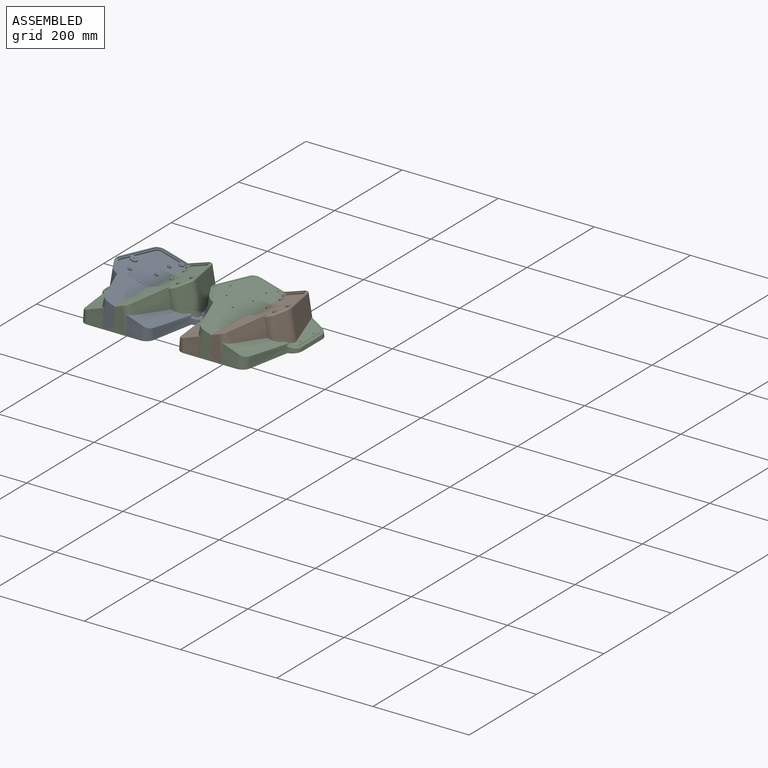
[diagram: assembled view]
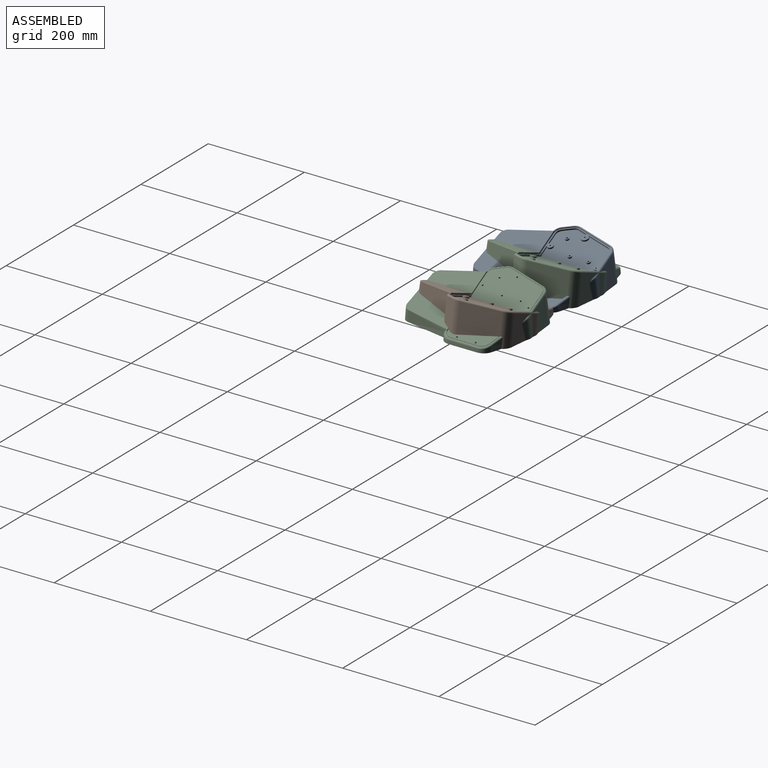
[diagram: assembled view, second angle]
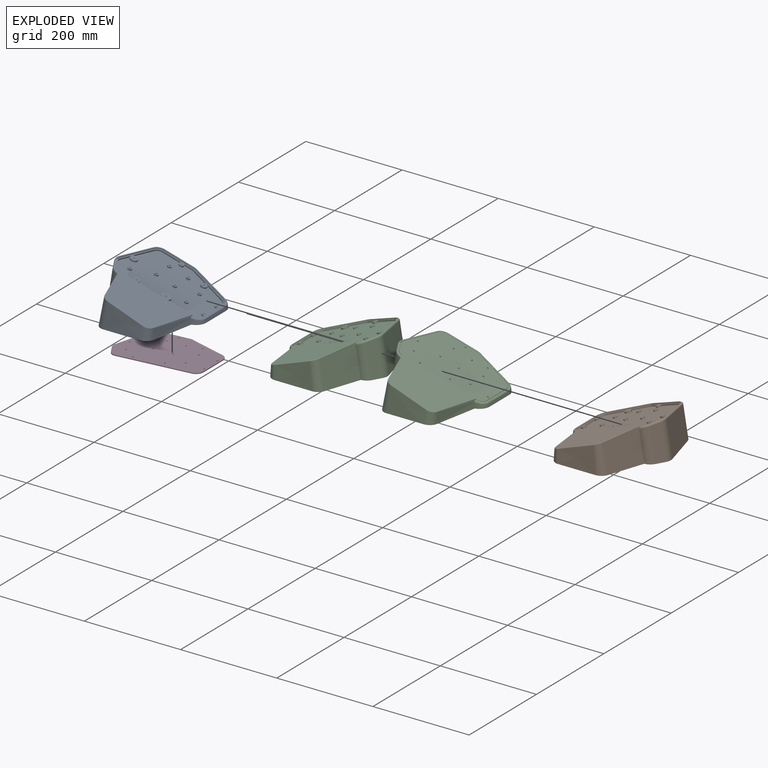
[diagram: exploded view]
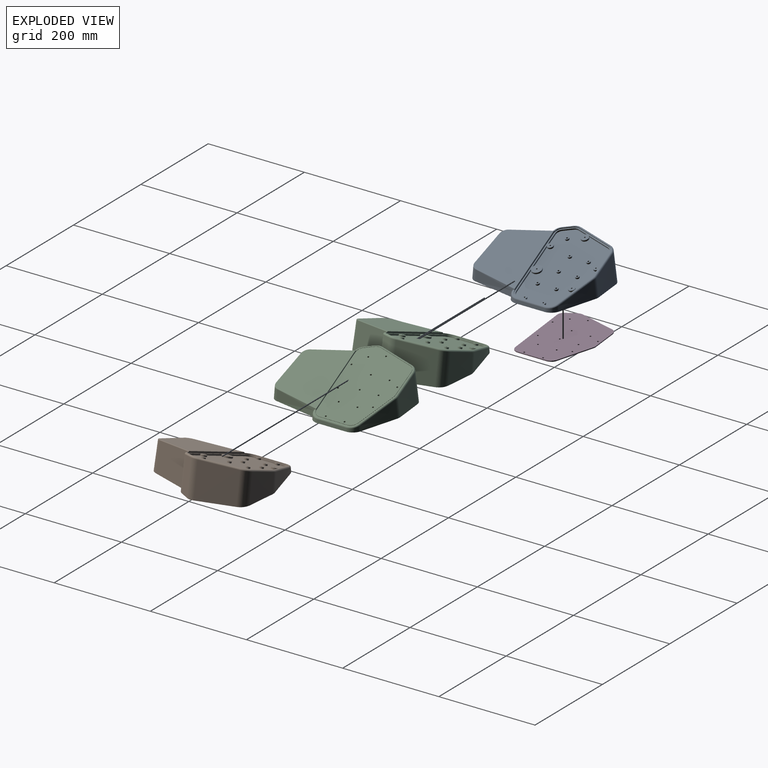
[diagram: exploded view, second angle]
FCSTD DOCUMENT  (FreeCAD 0.19R14555 (Git shallow))
Label: 3d_printed_tented_case
License: All rights reserved
LicenseURL: http://en.wikipedia.org/wiki/All_rights_reserved
objects: Sketcher::SketchObject×13, PartDesign::Plane×5, PartDesign::CoordinateSystem×5, PartDesign::Pocket×5, Spreadsheet::Sheet×4, App::Link×4, PartDesign::AdditiveLoft×2, App::DocumentObjectGroup×2, App::Part×2, PartDesign::Pad×2, PartDesign::Body×2, PartDesign::Fillet×2, App::FeaturePython×1, Part::Mirroring×1
note: 48 computed .brp shape members not serialized (recipe doc carries the construction recipe); baked Part::Feature solids carry a one-line shape summary decoded from their .brp

FEATURE [Sketcher::SketchObject] Sketch  label="PCB Outline S"
  FullyConstrained = true
  expr: Constraints[16] = <<PCB Outline Vertices>>.B1
  expr: Constraints[8] = <<PCB Outline Vertices>>.B3
  expr: Constraints[15] = <<PCB Outline Vertices>>.A1
  expr: Constraints[13] = <<PCB Outline Vertices>>.A6
  expr: Constraints[7] = <<PCB Outline Vertices>>.A3
  expr: Constraints[6] = <<PCB Outline Vertices>>.B2
  expr: Constraints[12] = <<PCB Outline Vertices>>.B5
  expr: Constraints[5] = <<PCB Outline Vertices>>.A2
  expr: Constraints[10] = <<PCB Outline Vertices>>.B4
  expr: Constraints[11] = <<PCB Outline Vertices>>.A5
  expr: Constraints[9] = <<PCB Outline Vertices>>.A4
  expr: Constraints[14] = <<PCB Outline Vertices>>.B6
  sketch-geometry (18):
    g0: LineSegment StartX=-152 StartY=-1 StartZ=0 EndX=-172.287 EndY=-75.1 EndZ=0
    g1: LineSegment StartX=-172.287 StartY=-75.1 StartZ=0 EndX=-162.537 EndY=-91.9875 EndZ=0
    g2: LineSegment StartX=-162.537 StartY=-91.9875 StartZ=0 EndX=-15 EndY=-75.5 EndZ=0
    g3: LineSegment StartX=-15 StartY=-75.5 StartZ=0 EndX=-15 EndY=-17 EndZ=0
    g4: LineSegment StartX=-15 StartY=-17 StartZ=0 EndX=-93 EndY=5 EndZ=0
    g5: LineSegment StartX=-93 StartY=5 StartZ=0 EndX=-152 EndY=-1 EndZ=0
    g6: LineSegment StartX=-166.468 StartY=2.96101 StartZ=0 EndX=-186.755 EndY=-71.139 EndZ=0
    g7: LineSegment StartX=-153.518 StartY=13.923 StartZ=0 EndX=-94.5176 EndY=19.923 EndZ=0
    g8: LineSegment StartX=-88.9281 StartY=19.4367 StartZ=0 EndX=-10.9281 EndY=-2.56325 EndZ=0
    g9: LineSegment StartX=-8.9e-15 StartY=-17 StartZ=0 EndX=-8.9e-15 EndY=-75.5 EndZ=0
    g10: LineSegment StartX=-13.3341 StartY=-90.4072 StartZ=0 EndX=-160.872 EndY=-106.895 EndZ=0
    g11: LineSegment StartX=-185.278 StartY=-82.6 StartZ=0 EndX=-175.528 EndY=-99.4875 EndZ=0
    g12: ArcOfCircle CenterX=-152 CenterY=-1 CenterZ=0 NormalX=0 NormalY=0 NormalZ=1 AngleXU=0 Radius=15 StartAngle=1.67214 EndAngle=2.87436
    g13: ArcOfCircle CenterX=-93 CenterY=5 CenterZ=0 NormalX=0 NormalY=0 NormalZ=1 AngleXU=0 Radius=15 StartAngle=1.29589 EndAngle=1.67214
    g14: ArcOfCircle CenterX=-15 CenterY=-17 CenterZ=0 NormalX=0 NormalY=0 NormalZ=1 AngleXU=0 Radius=15 StartAngle=0 EndAngle=1.29589
    g15: ArcOfCircle CenterX=-15 CenterY=-75.5 CenterZ=0 NormalX=0 NormalY=0 NormalZ=1 AngleXU=0 Radius=15 StartAngle=4.82368 EndAngle=6.28319
    g16: ArcOfCircle CenterX=-162.537 CenterY=-91.9875 CenterZ=0 NormalX=0 NormalY=0 NormalZ=1 AngleXU=0 Radius=15 StartAngle=3.66519 EndAngle=4.82368
    g17: ArcOfCircle CenterX=-172.287 CenterY=-75.1 CenterZ=0 NormalX=0 NormalY=0 NormalZ=1 AngleXU=0 Radius=15 StartAngle=2.87436 EndAngle=3.66519
  constraints (43):
    c: Coincident(g0,g1)
    c: Coincident(g1,g2)
    c: Coincident(g2,g3)
    c: Coincident(g3,g4)
    c: Coincident(g4,g5)
    c: DistanceX(g0) = -172.287
    c: DistanceY(g0) = -75.1
    c: DistanceX(g1) = -162.537
    c: DistanceY(g1) = -91.9875
    c: DistanceX(g2) = -15
    c: DistanceY(g2) = -75.5
    c: DistanceX(g3) = -15
    c: DistanceY(g3) = -17
    c: DistanceX(g4) = -93
    c: DistanceY(g4) = 5
    c: DistanceX(g0) = -152
    c: DistanceY(g0) = -1
    c: Vertical(g9)
    c: Coincident(g12,g0)
    c: Coincident(g13,g4)
    c: Coincident(g14,g3)
    c: Coincident(g15,g2)
    c: Coincident(g16,g1)
    c: Coincident(g17,g0)
    c: Equal(g12,g13)
    c: Equal(g13,g14)
    c: Equal(g14,g15)
    c: Equal(g15,g16)
    c: Equal(g16,g17)
    c: Radius(g12) = 15  'vertex_radius'
    c: Tangent(g12,g7) = 1.5708
    c: Tangent(g12,g6) = -1.5708
    c: Tangent(g6,g17) = -1.5708
    c: Tangent(g17,g11) = -1.5708
    c: Coincident(g15,g9)
    c: Tangent(g15,g10) = 1.5708
    c: Tangent(g16,g10) = 1.5708
    c: Tangent(g13,g8) = 1.5708
    c: Tangent(g13,g7) = 1.5708
    c: Tangent(g8,g14) = 1.5708
    c: Tangent(g9,g14) = 1.5708
    c: Tangent(g16,g11) = -1.5708
    c: Coincident(g12,g5)
FEATURE [Spreadsheet::Sheet] Spreadsheet  label="PCB Outline Vertices"
  cells = A1==-152mm; B1==-1mm; A2==-172.2874953737966mm; B2==-75.09999999999999mm; A3==-162.5374953737966mm; B3==-91.98749537379655mm; A4==-15mm; B4==-75.5mm; A5==-15mm; B5==-17mm; A6==-93mm; B6==5mm
FEATURE [Spreadsheet::Sheet] Spreadsheet001  label="Mounting Hole Positions"
  cells = A1==-5mm; B1==-26.75mm; A2==-5mm; B2==-65.75mm; A3==-44.25mm; B3==-25.75mm; A4==-44.25mm; B4==-64.75mm; A5==-83.25mm; B5==-7.75mm; A6==-83.25mm; B6==-46.75mm; A7==-122.25mm; B7==-10.25mm; A8==-122.25mm; B8==-49.25mm; A9==-54mm; B9==0mm; A10==-73.5mm; B10==-85.5mm; A11==-112.5mm; B11==12mm; A12==-132.25mm; B12==-96mm; A13==-171.5mm; B13==-50mm; A14==-158.9687476868983mm; B14==-78.66874768689827mm
FEATURE [Sketcher::SketchObject] Sketch001  label="PCB Mounting Holes S"
  FullyConstrained = true
  expr: Constraints[40] = <<Mounting Hole Positions>>.A14
  expr: Constraints[39] = <<Mounting Hole Positions>>.B13
  expr: Constraints[37] = <<Mounting Hole Positions>>.B12
  expr: Constraints[35] = <<Mounting Hole Positions>>.B11
  expr: Constraints[33] = <<Mounting Hole Positions>>.B10
  expr: Constraints[20] = <<Mounting Hole Positions>>.B4
  expr: Constraints[24] = <<Mounting Hole Positions>>.B6
  expr: Constraints[27] = <<Mounting Hole Positions>>.B7
  expr: Constraints[22] = <<Mounting Hole Positions>>.B5
  expr: Constraints[41] = <<Mounting Hole Positions>>.B14
  expr: Constraints[28] = <<Mounting Hole Positions>>.A8
  expr: Constraints[21] = <<Mounting Hole Positions>>.A5
  expr: Constraints[31] = <<Mounting Hole Positions>>.B9
  expr: Constraints[30] = <<Mounting Hole Positions>>.A9
  expr: Constraints[19] = <<Mounting Hole Positions>>.A4
  expr: Constraints[23] = <<Mounting Hole Positions>>.A6
  expr: Constraints[29] = <<Mounting Hole Positions>>.B8
  expr: Constraints[4] = <<Mounting Hole Positions>>.A3
  expr: Constraints[38] = <<Mounting Hole Positions>>.A13
  expr: Constraints[26] = <<Mounting Hole Positions>>.A7
  expr: Constraints[3] = <<Mounting Hole Positions>>.B2
  expr: Constraints[32] = <<Mounting Hole Positions>>.A10
  expr: Constraints[5] = <<Mounting Hole Positions>>.B3
  expr: Constraints[2] = <<Mounting Hole Positions>>.A2
  expr: Constraints[1] = <<Mounting Hole Positions>>.B1
  expr: Constraints[0] = <<Mounting Hole Positions>>.A1
  expr: Constraints[34] = <<Mounting Hole Positions>>.A11
  expr: Constraints[36] = <<Mounting Hole Positions>>.A12
  sketch-geometry (14):
    g0: Circle CenterX=-5 CenterY=-26.75 CenterZ=0 NormalX=0 NormalY=0 NormalZ=1 AngleXU=0 Radius=1.75
    g1: Circle CenterX=-5 CenterY=-65.75 CenterZ=0 NormalX=0 NormalY=0 NormalZ=1 AngleXU=0 Radius=1.75
    g2: Circle CenterX=-44.25 CenterY=-25.75 CenterZ=0 NormalX=0 NormalY=0 NormalZ=1 AngleXU=0 Radius=1.75
    g3: Circle CenterX=-44.25 CenterY=-64.75 CenterZ=0 NormalX=0 NormalY=0 NormalZ=1 AngleXU=0 Radius=1.75
    g4: Circle CenterX=-54 CenterY=0 CenterZ=0 NormalX=0 NormalY=0 NormalZ=1 AngleXU=0 Radius=1.75
    g5: Circle CenterX=-83.25 CenterY=-7.75 CenterZ=0 NormalX=0 NormalY=0 NormalZ=1 AngleXU=0 Radius=1.75
    g6: Circle CenterX=-158.969 CenterY=-78.6687 CenterZ=0 NormalX=0 NormalY=0 NormalZ=1 AngleXU=0 Radius=1.75
    g7: Circle CenterX=-73.5 CenterY=-85.5 CenterZ=0 NormalX=0 NormalY=0 NormalZ=1 AngleXU=0 Radius=1.75
    g8: Circle CenterX=-132.25 CenterY=-96 CenterZ=0 NormalX=0 NormalY=0 NormalZ=1 AngleXU=0 Radius=1.75
    g9: Circle CenterX=-171.5 CenterY=-50 CenterZ=0 NormalX=0 NormalY=0 NormalZ=1 AngleXU=0 Radius=1.75
    g10: Circle CenterX=-112.5 CenterY=12 CenterZ=0 NormalX=0 NormalY=0 NormalZ=1 AngleXU=0 Radius=1.75
    g11: Circle CenterX=-122.25 CenterY=-49.25 CenterZ=0 NormalX=0 NormalY=0 NormalZ=1 AngleXU=0 Radius=1.75
    g12: Circle CenterX=-122.25 CenterY=-10.25 CenterZ=0 NormalX=0 NormalY=0 NormalZ=1 AngleXU=0 Radius=1.75
    g13: Circle CenterX=-83.25 CenterY=-46.75 CenterZ=0 NormalX=0 NormalY=0 NormalZ=1 AngleXU=0 Radius=1.75
  constraints (42):
    c: DistanceX(g0) = -5
    c: DistanceY(g0) = -26.75
    c: DistanceX(g1) = -5
    c: DistanceY(g1) = -65.75
    c: DistanceX(g2) = -44.25
    c: DistanceY(g2) = -25.75
    c: Equal(g0,g1)
    c: Equal(g1,g2)
    c: Equal(g2,g3)
    c: Equal(g3,g4)
    c: Equal(g4,g5)
    c: Equal(g5,g6)
    c: Equal(g6,g7)
    c: Equal(g7,g8)
    c: Equal(g8,g9)
    c: Equal(g9,g10)
    c: Equal(g10,g11)
    c: Equal(g11,g12)
    c: Equal(g12,g13)
    c: DistanceX(g3) = -44.25
    c: DistanceY(g3) = -64.75
    c: DistanceX(g5) = -83.25
    c: DistanceY(g5) = -7.75
    c: DistanceX(g13) = -83.25
    c: DistanceY(g13) = -46.75
    c: Diameter(g1) = 3.5  'hole_diameter'
    c: DistanceX(g12) = -122.25
    c: DistanceY(g12) = -10.25
    c: DistanceX(g11) = -122.25
    c: DistanceY(g11) = -49.25
    c: DistanceX(g4) = -54
    c: DistanceY(g4) = 0
    c: DistanceX(g7) = -73.5
    c: DistanceY(g7) = -85.5
    c: DistanceX(g10) = -112.5
    c: DistanceY(g10) = 12
    c: DistanceX(g8) = -132.25
    c: DistanceY(g8) = -96
    c: DistanceX(g9) = -171.5
    c: DistanceY(g9) = -50
    c: DistanceX(g6) = -158.969
    c: DistanceY(g6) = -78.6687
FEATURE [Sketcher::SketchObject] Sketch002  label="Case Bottom Face"
  FullyConstrained = true
  MapMode = 5
  Support = -> [XY_Plane]
  expr: Constraints[5] = Sketch.Constraints[5]
  expr: Constraints[10] = Sketch.Constraints[10]
  expr: Constraints[6] = Sketch.Constraints[6]
  expr: Constraints[7] = Sketch.Constraints[7]
  expr: Constraints[13] = Sketch.Constraints[13]
  expr: Constraints[42] = <<PCB Outline S>>.Constraints.vertex_radius + <<Parameters>>.pcb_lower_padding
  expr: Constraints[8] = Sketch.Constraints[8]
  expr: Constraints[16] = Sketch.Constraints[16]
  expr: Constraints[9] = Sketch.Constraints[9]
  expr: Constraints[14] = Sketch.Constraints[14]
  expr: Constraints[11] = Sketch.Constraints[11]
  expr: Constraints[12] = Sketch.Constraints[12]
  expr: Constraints[15] = Sketch.Constraints[15]
  sketch-geometry (18):
    g0: LineSegment StartX=-152 StartY=-1 StartZ=0 EndX=-172.287 EndY=-75.1 EndZ=0
    g1: LineSegment StartX=-172.287 StartY=-75.1 StartZ=0 EndX=-162.537 EndY=-91.9875 EndZ=0
    g2: LineSegment StartX=-162.537 StartY=-91.9875 StartZ=0 EndX=-15 EndY=-75.5 EndZ=0
    g3: LineSegment StartX=-15 StartY=-75.5 StartZ=0 EndX=-15 EndY=-17 EndZ=0
    g4: LineSegment StartX=-15 StartY=-17 StartZ=0 EndX=-93 EndY=5 EndZ=0
    g5: LineSegment StartX=-93 StartY=5 StartZ=0 EndX=-152 EndY=-1 EndZ=0
    g6: LineSegment StartX=-172.255 StartY=4.54541 StartZ=0 EndX=-192.542 EndY=-69.5546 EndZ=0
    g7: LineSegment StartX=-154.125 StartY=19.8922 StartZ=0 EndX=-95.1246 EndY=25.8922 EndZ=0
    g8: LineSegment StartX=-87.2993 StartY=25.2114 StartZ=0 EndX=-9.29934 EndY=3.21144 EndZ=0
    g9: LineSegment StartX=6 StartY=-17 StartZ=0 EndX=6 EndY=-75.5 EndZ=0
    g10: LineSegment StartX=-12.6677 StartY=-96.3701 StartZ=0 EndX=-160.205 EndY=-112.858 EndZ=0
    g11: LineSegment StartX=-190.474 StartY=-85.6 StartZ=0 EndX=-180.724 EndY=-102.487 EndZ=0
    g12: ArcOfCircle CenterX=-152 CenterY=-1 CenterZ=0 NormalX=0 NormalY=0 NormalZ=1 AngleXU=0 Radius=21 StartAngle=1.67214 EndAngle=2.87436
    g13: ArcOfCircle CenterX=-93 CenterY=5 CenterZ=0 NormalX=0 NormalY=0 NormalZ=1 AngleXU=0 Radius=21 StartAngle=1.29589 EndAngle=1.67214
    g14: ArcOfCircle CenterX=-15 CenterY=-17 CenterZ=0 NormalX=0 NormalY=0 NormalZ=1 AngleXU=0 Radius=21 StartAngle=0 EndAngle=1.29589
    g15: ArcOfCircle CenterX=-15 CenterY=-75.5 CenterZ=0 NormalX=0 NormalY=0 NormalZ=1 AngleXU=0 Radius=21 StartAngle=4.82368 EndAngle=6.28318
    g16: ArcOfCircle CenterX=-162.537 CenterY=-91.9875 CenterZ=0 NormalX=0 NormalY=0 NormalZ=1 AngleXU=0 Radius=21 StartAngle=3.66519 EndAngle=4.82368
    g17: ArcOfCircle CenterX=-172.287 CenterY=-75.1 CenterZ=0 NormalX=0 NormalY=0 NormalZ=1 AngleXU=0 Radius=21 StartAngle=2.87436 EndAngle=3.66519
  constraints (43):
    c: Coincident(g0,g1)
    c: Coincident(g1,g2)
    c: Coincident(g2,g3)
    c: Coincident(g3,g4)
    c: Coincident(g4,g5)
    c: DistanceX(g0) = -172.287
    c: DistanceY(g0) = -75.1
    c: DistanceX(g1) = -162.537
    c: DistanceY(g1) = -91.9875
    c: DistanceX(g2) = -15
    c: DistanceY(g2) = -75.5
    c: DistanceX(g3) = -15
    c: DistanceY(g3) = -17
    c: DistanceX(g4) = -93
    c: DistanceY(g4) = 5
    c: DistanceX(g0) = -152
    c: DistanceY(g0) = -1
    c: Vertical(g9)
    c: Coincident(g12,g0)
    c: Coincident(g13,g4)
    c: Coincident(g14,g3)
    c: Coincident(g15,g2)
    c: Coincident(g16,g1)
    c: Coincident(g17,g0)
    c: Equal(g12,g13)
    c: Equal(g13,g14)
    c: Equal(g14,g15)
    c: Equal(g15,g16)
    c: Equal(g16,g17)
    c: Tangent(g12,g7) = 1.5708
    c: Tangent(g12,g6) = -1.5708
    c: Tangent(g6,g17) = -1.5708
    c: Tangent(g17,g11) = -1.5708
    c: Coincident(g15,g9)
    c: Tangent(g15,g10) = 1.5708
    c: Tangent(g16,g10) = 1.5708
    c: Tangent(g13,g8) = 1.5708
    c: Tangent(g13,g7) = 1.5708
    c: Tangent(g8,g14) = 1.5708
    c: Tangent(g9,g14) = 1.5708
    c: Tangent(g16,g11) = -1.5708
    c: Coincident(g12,g5)
    c: Radius(g12) = 21
FEATURE [PartDesign::Plane] DatumPlane  label="Top Face Plane"
  AttachmentOffset = pos=(0,0,10) rot=(0,1,0;0.349066rad)
  Length = 285.46
  MapMode = 5
  Placement = pos=(0,0,10) rot=(0,1,0;0.349066rad)
  ResizeMode = 0
  Support = -> [XY_Plane]
  Width = 270.285
  expr: .AttachmentOffset.Base.z = <<Parameters>>.pcb_z_offset
  expr: .AttachmentOffset.Rotation.Angle = <<Parameters>>.tent_angle
FEATURE [Sketcher::SketchObject] Sketch003  label="Case Top Face"
  FullyConstrained = true
  MapMode = 5
  Placement = pos=(4e-16,0,10) rot=(0,1,0;0.349066rad)
  Support = -> [DatumPlane]
  expr: Constraints[5] = Sketch.Constraints[5]
  expr: Constraints[10] = Sketch.Constraints[10]
  expr: Constraints[6] = Sketch.Constraints[6]
  expr: Constraints[7] = Sketch.Constraints[7]
  expr: Constraints[13] = Sketch.Constraints[13]
  expr: Constraints[42] = <<PCB Outline S>>.Constraints.vertex_radius + <<Parameters>>.pcb_upper_padding
  expr: Constraints[8] = Sketch.Constraints[8]
  expr: Constraints[16] = Sketch.Constraints[16]
  expr: Constraints[9] = Sketch.Constraints[9]
  expr: Constraints[14] = Sketch.Constraints[14]
  expr: Constraints[11] = Sketch.Constraints[11]
  expr: Constraints[12] = Sketch.Constraints[12]
  expr: Constraints[15] = Sketch.Constraints[15]
  sketch-geometry (18):
    g0: LineSegment StartX=-152 StartY=-1 StartZ=0 EndX=-172.287 EndY=-75.1 EndZ=0
    g1: LineSegment StartX=-172.287 StartY=-75.1 StartZ=0 EndX=-162.537 EndY=-91.9875 EndZ=0
    g2: LineSegment StartX=-162.537 StartY=-91.9875 StartZ=0 EndX=-15 EndY=-75.5 EndZ=0
    g3: LineSegment StartX=-15 StartY=-75.5 StartZ=0 EndX=-15 EndY=-17 EndZ=0
    g4: LineSegment StartX=-15 StartY=-17 StartZ=0 EndX=-93 EndY=5 EndZ=0
    g5: LineSegment StartX=-93 StartY=5 StartZ=0 EndX=-152 EndY=-1 EndZ=0
    g6: LineSegment StartX=-171.29 StartY=4.28134 StartZ=0 EndX=-191.578 EndY=-69.8187 EndZ=0
    g7: LineSegment StartX=-154.023 StartY=18.8974 StartZ=0 EndX=-95.0235 EndY=24.8974 EndZ=0
    g8: LineSegment StartX=-87.5708 StartY=24.249 StartZ=0 EndX=-9.5708 EndY=2.24899 EndZ=0
    g9: LineSegment StartX=5 StartY=-17 StartZ=0 EndX=5 EndY=-75.5 EndZ=0
    g10: LineSegment StartX=-12.7788 StartY=-95.3763 StartZ=0 EndX=-160.316 EndY=-111.864 EndZ=0
    g11: LineSegment StartX=-189.608 StartY=-85.1 StartZ=0 EndX=-179.858 EndY=-101.987 EndZ=0
    g12: ArcOfCircle CenterX=-152 CenterY=-1 CenterZ=0 NormalX=0 NormalY=0 NormalZ=1 AngleXU=0 Radius=20 StartAngle=1.67214 EndAngle=2.87436
    g13: ArcOfCircle CenterX=-93 CenterY=5 CenterZ=0 NormalX=0 NormalY=0 NormalZ=1 AngleXU=0 Radius=20 StartAngle=1.29589 EndAngle=1.67214
    g14: ArcOfCircle CenterX=-15 CenterY=-17 CenterZ=0 NormalX=0 NormalY=0 NormalZ=1 AngleXU=0 Radius=20 StartAngle=0 EndAngle=1.29589
    g15: ArcOfCircle CenterX=-15 CenterY=-75.5 CenterZ=0 NormalX=0 NormalY=0 NormalZ=1 AngleXU=0 Radius=20 StartAngle=4.82368 EndAngle=6.28319
    g16: ArcOfCircle CenterX=-162.537 CenterY=-91.9875 CenterZ=0 NormalX=0 NormalY=0 NormalZ=1 AngleXU=0 Radius=20 StartAngle=3.66519 EndAngle=4.82368
    g17: ArcOfCircle CenterX=-172.287 CenterY=-75.1 CenterZ=0 NormalX=0 NormalY=0 NormalZ=1 AngleXU=0 Radius=20 StartAngle=2.87436 EndAngle=3.66519
  constraints (43):
    c: Coincident(g0,g1)
    c: Coincident(g1,g2)
    c: Coincident(g2,g3)
    c: Coincident(g3,g4)
    c: Coincident(g4,g5)
    c: DistanceX(g0) = -172.287
    c: DistanceY(g0) = -75.1
    c: DistanceX(g1) = -162.537
    c: DistanceY(g1) = -91.9875
    c: DistanceX(g2) = -15
    c: DistanceY(g2) = -75.5
    c: DistanceX(g3) = -15
    c: DistanceY(g3) = -17
    c: DistanceX(g4) = -93
    c: DistanceY(g4) = 5
    c: DistanceX(g0) = -152
    c: DistanceY(g0) = -1
    c: Vertical(g9)
    c: Coincident(g12,g0)
    c: Coincident(g13,g4)
    c: Coincident(g14,g3)
    c: Coincident(g15,g2)
    c: Coincident(g16,g1)
    c: Coincident(g17,g0)
    c: Equal(g12,g13)
    c: Equal(g13,g14)
    c: Equal(g14,g15)
    c: Equal(g15,g16)
    c: Equal(g16,g17)
    c: Tangent(g12,g7) = 1.5708
    c: Tangent(g12,g6) = -1.5708
    c: Tangent(g6,g17) = -1.5708
    c: Tangent(g17,g11) = -1.5708
    c: Coincident(g15,g9)
    c: Tangent(g15,g10) = 1.5708
    c: Tangent(g16,g10) = 1.5708
    c: Tangent(g13,g8) = 1.5708
    c: Tangent(g13,g7) = 1.5708
    c: Tangent(g8,g14) = 1.5708
    c: Tangent(g9,g14) = 1.5708
    c: Tangent(g16,g11) = -1.5708
    c: Coincident(g12,g5)
    c: Radius(g12) = 20
FEATURE [PartDesign::AdditiveLoft] AdditiveLoft  label="Case Body"
  Closed = false
  Profile = -> Sketch002
  Ruled = false
  Sections = -> [Sketch003]
FEATURE [Sketcher::SketchObject] Sketch004
  FullyConstrained = true
  MapMode = 5
  Placement = pos=(4e-16,0,10) rot=(0,1,0;0.349066rad)
  Support = -> [DatumPlane]
  expr: Constraints[5] = Sketch.Constraints[5]
  expr: Constraints[10] = Sketch.Constraints[10]
  expr: Constraints[6] = Sketch.Constraints[6]
  expr: Constraints[7] = Sketch.Constraints[7]
  expr: Constraints[13] = Sketch.Constraints[13]
  expr: Constraints[8] = Sketch.Constraints[8]
  expr: Constraints[16] = Sketch.Constraints[16]
  expr: Constraints[9] = Sketch.Constraints[9]
  expr: Constraints[14] = Sketch.Constraints[14]
  expr: Constraints[11] = Sketch.Constraints[11]
  expr: Constraints[12] = Sketch.Constraints[12]
  expr: Constraints[15] = Sketch.Constraints[15]
  sketch-geometry (18):
    g0: LineSegment StartX=-152 StartY=-1 StartZ=0 EndX=-172.287 EndY=-75.1 EndZ=0
    g1: LineSegment StartX=-172.287 StartY=-75.1 StartZ=0 EndX=-162.537 EndY=-91.9875 EndZ=0
    g2: LineSegment StartX=-162.537 StartY=-91.9875 StartZ=0 EndX=-15 EndY=-75.5 EndZ=0
    g3: LineSegment StartX=-15 StartY=-75.5 StartZ=0 EndX=-15 EndY=-17 EndZ=0
    g4: LineSegment StartX=-15 StartY=-17 StartZ=0 EndX=-93 EndY=5 EndZ=0
    g5: LineSegment StartX=-93 StartY=5 StartZ=0 EndX=-152 EndY=-1 EndZ=0
    g6: LineSegment StartX=-166.95 StartY=3.09304 StartZ=0 EndX=-187.237 EndY=-71.007 EndZ=0
    g7: LineSegment StartX=-153.568 StartY=14.4205 StartZ=0 EndX=-94.5682 EndY=20.4205 EndZ=0
    g8: LineSegment StartX=-88.7924 StartY=19.918 StartZ=0 EndX=-10.7924 EndY=-2.08203 EndZ=0
    g9: LineSegment StartX=0.5 StartY=-17 StartZ=0 EndX=0.5 EndY=-75.5 EndZ=0
    g10: LineSegment StartX=-13.2786 StartY=-90.9041 StartZ=0 EndX=-160.816 EndY=-107.392 EndZ=0
    g11: LineSegment StartX=-185.711 StartY=-82.85 StartZ=0 EndX=-175.961 EndY=-99.7375 EndZ=0
    g12: ArcOfCircle CenterX=-152 CenterY=-1 CenterZ=0 NormalX=0 NormalY=0 NormalZ=1 AngleXU=0 Radius=15.5 StartAngle=1.67214 EndAngle=2.87436
    g13: ArcOfCircle CenterX=-93 CenterY=5 CenterZ=0 NormalX=0 NormalY=0 NormalZ=1 AngleXU=0 Radius=15.5 StartAngle=1.29589 EndAngle=1.67214
    g14: ArcOfCircle CenterX=-15 CenterY=-17 CenterZ=0 NormalX=0 NormalY=0 NormalZ=1 AngleXU=0 Radius=15.5 StartAngle=0 EndAngle=1.29589
    g15: ArcOfCircle CenterX=-15 CenterY=-75.5 CenterZ=0 NormalX=0 NormalY=0 NormalZ=1 AngleXU=0 Radius=15.5 StartAngle=4.82368 EndAngle=6.28319
    g16: ArcOfCircle CenterX=-162.537 CenterY=-91.9875 CenterZ=0 NormalX=0 NormalY=0 NormalZ=1 AngleXU=0 Radius=15.5 StartAngle=3.66519 EndAngle=4.82368
    g17: ArcOfCircle CenterX=-172.287 CenterY=-75.1 CenterZ=0 NormalX=0 NormalY=0 NormalZ=1 AngleXU=0 Radius=15.5 StartAngle=2.87436 EndAngle=3.66519
  constraints (43):
    c: Coincident(g0,g1)
    c: Coincident(g1,g2)
    c: Coincident(g2,g3)
    c: Coincident(g3,g4)
    c: Coincident(g4,g5)
    c: DistanceX(g0) = -172.287
    c: DistanceY(g0) = -75.1
    c: DistanceX(g1) = -162.537
    c: DistanceY(g1) = -91.9875
    c: DistanceX(g2) = -15
    c: DistanceY(g2) = -75.5
    c: DistanceX(g3) = -15
    c: DistanceY(g3) = -17
    c: DistanceX(g4) = -93
    c: DistanceY(g4) = 5
    c: DistanceX(g0) = -152
    c: DistanceY(g0) = -1
    c: Vertical(g9)
    c: Coincident(g12,g0)
    c: Coincident(g13,g4)
    c: Coincident(g14,g3)
    c: Coincident(g15,g2)
    c: Coincident(g16,g1)
    c: Coincident(g17,g0)
    c: Equal(g12,g13)
    c: Equal(g13,g14)
    c: Equal(g14,g15)
    c: Equal(g15,g16)
    c: Equal(g16,g17)
    c: Tangent(g12,g7) = 1.5708
    c: Tangent(g12,g6) = -1.5708
    c: Tangent(g6,g17) = -1.5708
    c: Tangent(g17,g11) = -1.5708
    c: Coincident(g15,g9)
    c: Tangent(g15,g10) = 1.5708
    c: Tangent(g16,g10) = 1.5708
    c: Tangent(g13,g8) = 1.5708
    c: Tangent(g13,g7) = 1.5708
    c: Tangent(g8,g14) = 1.5708
    c: Tangent(g9,g14) = 1.5708
    c: Tangent(g16,g11) = -1.5708
    c: Coincident(g12,g5)
    c: Radius(g12) = 15.5
FEATURE [PartDesign::Plane] DatumPlane001  label="PCB Bottom Face"
  AttachmentOffset = pos=(0,0,-1.8) rot=(0,0,1;0rad)
  Length = 285.46
  MapMode = 5
  Placement = pos=(-0.615636,0,8.30855) rot=(0,1,0;0.349066rad)
  ResizeMode = 0
  Support = -> [DatumPlane]
  Width = 270.285
  expr: .AttachmentOffset.Base.z = -<<Parameters>>.pcb_thickness
FEATURE [Sketcher::SketchObject] Sketch005
  FullyConstrained = true
  MapMode = 5
  Placement = pos=(-0.615636,0,8.30855) rot=(0,1,0;0.349066rad)
  Support = -> [DatumPlane001]
  expr: Constraints[36] = Sketch001.Constraints[36]
  expr: Constraints[34] = Sketch001.Constraints[34]
  expr: Constraints[0] = Sketch001.Constraints[0]
  expr: .Constraints.hole_diameter = Sketch001.Constraints[25]
  expr: Constraints[1] = Sketch001.Constraints[1]
  expr: Constraints[2] = Sketch001.Constraints[2]
  expr: Constraints[5] = Sketch001.Constraints[5]
  expr: Constraints[38] = Sketch001.Constraints[38]
  expr: Constraints[29] = Sketch001.Constraints[29]
  expr: Constraints[4] = Sketch001.Constraints[4]
  expr: Constraints[32] = Sketch001.Constraints[32]
  expr: Constraints[3] = Sketch001.Constraints[3]
  expr: Constraints[26] = Sketch001.Constraints[26]
  expr: Constraints[23] = Sketch001.Constraints[23]
  expr: Constraints[19] = Sketch001.Constraints[19]
  expr: Constraints[31] = Sketch001.Constraints[31]
  expr: Constraints[30] = Sketch001.Constraints[30]
  expr: Constraints[21] = Sketch001.Constraints[21]
  expr: Constraints[28] = Sketch001.Constraints[28]
  expr: Constraints[41] = Sketch001.Constraints[41]
  expr: Constraints[22] = Sketch001.Constraints[22]
  expr: Constraints[27] = Sketch001.Constraints[27]
  expr: Constraints[24] = Sketch001.Constraints[24]
  expr: Constraints[20] = Sketch001.Constraints[20]
  expr: Constraints[33] = Sketch001.Constraints[33]
  expr: Constraints[35] = Sketch001.Constraints[35]
  expr: Constraints[37] = Sketch001.Constraints[37]
  expr: Constraints[39] = Sketch001.Constraints[39]
  expr: Constraints[40] = Sketch001.Constraints[40]
  sketch-geometry (98):
    g0: Circle CenterX=-5 CenterY=-26.75 CenterZ=0 NormalX=0 NormalY=0 NormalZ=1 AngleXU=0 Radius=1.75
    g1: Circle CenterX=-5 CenterY=-65.75 CenterZ=0 NormalX=0 NormalY=0 NormalZ=1 AngleXU=0 Radius=1.75
    g2: Circle CenterX=-44.25 CenterY=-25.75 CenterZ=0 NormalX=0 NormalY=0 NormalZ=1 AngleXU=0 Radius=1.75
    g3: Circle CenterX=-44.25 CenterY=-64.75 CenterZ=0 NormalX=0 NormalY=0 NormalZ=1 AngleXU=0 Radius=1.75
    g4: Circle CenterX=-54 CenterY=0 CenterZ=0 NormalX=0 NormalY=0 NormalZ=1 AngleXU=0 Radius=1.75
    g5: Circle CenterX=-83.25 CenterY=-7.75 CenterZ=0 NormalX=0 NormalY=0 NormalZ=1 AngleXU=0 Radius=1.75
    g6: Circle CenterX=-158.969 CenterY=-78.6687 CenterZ=0 NormalX=0 NormalY=0 NormalZ=1 AngleXU=0 Radius=1.75
    g7: Circle CenterX=-73.5 CenterY=-85.5 CenterZ=0 NormalX=0 NormalY=0 NormalZ=1 AngleXU=0 Radius=1.75
    g8: Circle CenterX=-132.25 CenterY=-96 CenterZ=0 NormalX=0 NormalY=0 NormalZ=1 AngleXU=0 Radius=1.75
    g9: Circle CenterX=-171.5 CenterY=-50 CenterZ=0 NormalX=0 NormalY=0 NormalZ=1 AngleXU=0 Radius=1.75
    g10: Circle CenterX=-112.5 CenterY=12 CenterZ=0 NormalX=0 NormalY=0 NormalZ=1 AngleXU=0 Radius=1.75
    g11: Circle CenterX=-122.25 CenterY=-49.25 CenterZ=0 NormalX=0 NormalY=0 NormalZ=1 AngleXU=0 Radius=1.75
    g12: Circle CenterX=-122.25 CenterY=-10.25 CenterZ=0 NormalX=0 NormalY=0 NormalZ=1 AngleXU=0 Radius=1.75
    g13: Circle CenterX=-83.25 CenterY=-46.75 CenterZ=0 NormalX=0 NormalY=0 NormalZ=1 AngleXU=0 Radius=1.75
    g14: LineSegment StartX=-170.618 StartY=-51.2135 StartZ=0 EndX=-170.073 EndY=-49.5365 EndZ=0
    g15: LineSegment StartX=-170.073 StartY=-49.5365 StartZ=0 EndX=-171.5 EndY=-48.5 EndZ=0
    g16: LineSegment StartX=-171.5 StartY=-48.5 StartZ=0 EndX=-172.927 EndY=-49.5365 EndZ=0
    g17: LineSegment StartX=-172.927 StartY=-49.5365 StartZ=0 EndX=-172.382 EndY=-51.2135 EndZ=0
    g18: LineSegment StartX=-172.382 StartY=-51.2135 StartZ=0 EndX=-170.618 EndY=-51.2135 EndZ=0
    g19: Circle CenterX=-171.5 CenterY=-50 CenterZ=0 NormalX=0 NormalY=0 NormalZ=1 AngleXU=0 Radius=1.5
    g20: LineSegment StartX=-133.132 StartY=-97.2135 StartZ=0 EndX=-131.368 EndY=-97.2135 EndZ=0
    g21: LineSegment StartX=-131.368 StartY=-97.2135 StartZ=0 EndX=-130.823 EndY=-95.5365 EndZ=0
    g22: LineSegment StartX=-130.823 StartY=-95.5365 StartZ=0 EndX=-132.25 EndY=-94.5 EndZ=0
    g23: LineSegment StartX=-132.25 StartY=-94.5 StartZ=0 EndX=-133.677 EndY=-95.5365 EndZ=0
    g24: LineSegment StartX=-133.677 StartY=-95.5365 StartZ=0 EndX=-133.132 EndY=-97.2135 EndZ=0
    g25: Circle CenterX=-132.25 CenterY=-96 CenterZ=0 NormalX=0 NormalY=0 NormalZ=1 AngleXU=0 Radius=1.5
    g26: LineSegment StartX=-72.0734 StartY=-85.0365 StartZ=0 EndX=-73.5 EndY=-84 EndZ=0
    g27: LineSegment StartX=-73.5 StartY=-84 StartZ=0 EndX=-74.9266 EndY=-85.0365 EndZ=0
    g28: LineSegment StartX=-74.9266 StartY=-85.0365 StartZ=0 EndX=-74.3817 EndY=-86.7135 EndZ=0
    g29: LineSegment StartX=-74.3817 StartY=-86.7135 StartZ=0 EndX=-72.6183 EndY=-86.7135 EndZ=0
    g30: LineSegment StartX=-72.6183 StartY=-86.7135 StartZ=0 EndX=-72.0734 EndY=-85.0365 EndZ=0
    g31: Circle CenterX=-73.5 CenterY=-85.5 CenterZ=0 NormalX=0 NormalY=0 NormalZ=1 AngleXU=0 Radius=1.5
    g32: LineSegment StartX=-3.57342 StartY=-26.2865 StartZ=0 EndX=-5 EndY=-25.25 EndZ=0
    g33: LineSegment StartX=-5 StartY=-25.25 StartZ=0 EndX=-6.42658 EndY=-26.2865 EndZ=0
    g34: LineSegment StartX=-6.42658 StartY=-26.2865 StartZ=0 EndX=-5.88168 EndY=-27.9635 EndZ=0
    g35: LineSegment StartX=-5.88168 StartY=-27.9635 StartZ=0 EndX=-4.11832 EndY=-27.9635 EndZ=0
    g36: LineSegment StartX=-4.11832 StartY=-27.9635 StartZ=0 EndX=-3.57342 EndY=-26.2865 EndZ=0
    g37: Circle CenterX=-5 CenterY=-26.75 CenterZ=0 NormalX=0 NormalY=0 NormalZ=1 AngleXU=0 Radius=1.5
    g38: LineSegment StartX=-52.5734 StartY=0.463525 StartZ=0 EndX=-54 EndY=1.5 EndZ=0
    g39: LineSegment StartX=-54 StartY=1.5 StartZ=0 EndX=-55.4266 EndY=0.463525 EndZ=0
    g40: LineSegment StartX=-55.4266 StartY=0.463525 StartZ=0 EndX=-54.8817 EndY=-1.21353 EndZ=0
    g41: LineSegment StartX=-54.8817 StartY=-1.21353 StartZ=0 EndX=-53.1183 EndY=-1.21353 EndZ=0
    g42: LineSegment StartX=-53.1183 StartY=-1.21353 StartZ=0 EndX=-52.5734 EndY=0.463525 EndZ=0
    g43: Circle CenterX=-54 CenterY=0 CenterZ=0 NormalX=0 NormalY=0 NormalZ=1 AngleXU=0 Radius=1.5
    g44: LineSegment StartX=-111.618 StartY=10.7865 StartZ=0 EndX=-111.073 EndY=12.4635 EndZ=0
    g45: LineSegment StartX=-111.073 StartY=12.4635 StartZ=0 EndX=-112.5 EndY=13.5 EndZ=0
    g46: LineSegment StartX=-112.5 StartY=13.5 StartZ=0 EndX=-113.927 EndY=12.4635 EndZ=0
    g47: LineSegment StartX=-113.927 StartY=12.4635 StartZ=0 EndX=-113.382 EndY=10.7865 EndZ=0
    g48: LineSegment StartX=-113.382 StartY=10.7865 StartZ=0 EndX=-111.618 EndY=10.7865 EndZ=0
    g49: Circle CenterX=-112.5 CenterY=12 CenterZ=0 NormalX=0 NormalY=0 NormalZ=1 AngleXU=0 Radius=1.5
    g50: LineSegment StartX=-4.11832 StartY=-66.9635 StartZ=0 EndX=-3.57342 EndY=-65.2865 EndZ=0
    g51: LineSegment StartX=-3.57342 StartY=-65.2865 StartZ=0 EndX=-5 EndY=-64.25 EndZ=0
    g52: LineSegment StartX=-5 StartY=-64.25 StartZ=0 EndX=-6.42658 EndY=-65.2865 EndZ=0
    g53: LineSegment StartX=-6.42658 StartY=-65.2865 StartZ=0 EndX=-5.88168 EndY=-66.9635 EndZ=0
    g54: LineSegment StartX=-5.88168 StartY=-66.9635 StartZ=0 EndX=-4.11832 EndY=-66.9635 EndZ=0
    g55: Circle CenterX=-5 CenterY=-65.75 CenterZ=0 NormalX=0 NormalY=0 NormalZ=1 AngleXU=0 Radius=1.5
    g56: LineSegment StartX=-121.221 StartY=-11.6658 StartZ=0 EndX=-120.586 EndY=-9.70922 EndZ=0
    g57: LineSegment StartX=-120.586 StartY=-9.70922 StartZ=0 EndX=-122.25 EndY=-8.5 EndZ=0
    g58: LineSegment StartX=-122.25 StartY=-8.5 StartZ=0 EndX=-123.914 EndY=-9.70922 EndZ=0
    g59: LineSegment StartX=-123.914 StartY=-9.70922 StartZ=0 EndX=-123.279 EndY=-11.6658 EndZ=0
    g60: LineSegment StartX=-123.279 StartY=-11.6658 StartZ=0 EndX=-121.221 EndY=-11.6658 EndZ=0
    g61: Circle CenterX=-122.25 CenterY=-10.25 CenterZ=0 NormalX=0 NormalY=0 NormalZ=1 AngleXU=0 Radius=1.75
    g62: LineSegment StartX=-82.2214 StartY=-9.16578 StartZ=0 EndX=-81.5857 EndY=-7.20922 EndZ=0
    g63: LineSegment StartX=-81.5857 StartY=-7.20922 StartZ=0 EndX=-83.25 EndY=-6 EndZ=0
    g64: LineSegment StartX=-83.25 StartY=-6 StartZ=0 EndX=-84.9143 EndY=-7.20922 EndZ=0
    g65: LineSegment StartX=-84.9143 StartY=-7.20922 StartZ=0 EndX=-84.2786 EndY=-9.16578 EndZ=0
    g66: LineSegment StartX=-84.2786 StartY=-9.16578 StartZ=0 EndX=-82.2214 EndY=-9.16578 EndZ=0
    g67: Circle CenterX=-83.25 CenterY=-7.75 CenterZ=0 NormalX=0 NormalY=0 NormalZ=1 AngleXU=0 Radius=1.75
    g68: LineSegment StartX=-121.221 StartY=-50.6658 StartZ=0 EndX=-120.586 EndY=-48.7092 EndZ=0
    g69: LineSegment StartX=-120.586 StartY=-48.7092 StartZ=0 EndX=-122.25 EndY=-47.5 EndZ=0
    g70: LineSegment StartX=-122.25 StartY=-47.5 StartZ=0 EndX=-123.914 EndY=-48.7092 EndZ=0
    g71: LineSegment StartX=-123.914 StartY=-48.7092 StartZ=0 EndX=-123.279 EndY=-50.6658 EndZ=0
    g72: LineSegment StartX=-123.279 StartY=-50.6658 StartZ=0 EndX=-121.221 EndY=-50.6658 EndZ=0
    g73: Circle CenterX=-122.25 CenterY=-49.25 CenterZ=0 NormalX=0 NormalY=0 NormalZ=1 AngleXU=0 Radius=1.75
    g74: LineSegment StartX=-157.304 StartY=-78.128 StartZ=0 EndX=-158.969 EndY=-76.9187 EndZ=0
    g75: LineSegment StartX=-158.969 StartY=-76.9187 StartZ=0 EndX=-160.633 EndY=-78.128 EndZ=0
    g76: LineSegment StartX=-160.633 StartY=-78.128 StartZ=0 EndX=-159.997 EndY=-80.0845 EndZ=0
    g77: LineSegment StartX=-159.997 StartY=-80.0845 StartZ=0 EndX=-157.94 EndY=-80.0845 EndZ=0
    g78: LineSegment StartX=-157.94 StartY=-80.0845 StartZ=0 EndX=-157.304 EndY=-78.128 EndZ=0
    g79: Circle CenterX=-158.969 CenterY=-78.6687 CenterZ=0 NormalX=0 NormalY=0 NormalZ=1 AngleXU=0 Radius=1.75
    g80: LineSegment StartX=-43.2214 StartY=-27.1658 StartZ=0 EndX=-42.5857 EndY=-25.2092 EndZ=0
    g81: LineSegment StartX=-42.5857 StartY=-25.2092 StartZ=0 EndX=-44.25 EndY=-24 EndZ=0
    g82: LineSegment StartX=-44.25 StartY=-24 StartZ=0 EndX=-45.9143 EndY=-25.2092 EndZ=0
    g83: LineSegment StartX=-45.9143 StartY=-25.2092 StartZ=0 EndX=-45.2786 EndY=-27.1658 EndZ=0
    g84: LineSegment StartX=-45.2786 StartY=-27.1658 StartZ=0 EndX=-43.2214 EndY=-27.1658 EndZ=0
    g85: Circle CenterX=-44.25 CenterY=-25.75 CenterZ=0 NormalX=0 NormalY=0 NormalZ=1 AngleXU=0 Radius=1.75
    g86: LineSegment StartX=-82.2214 StartY=-48.1658 StartZ=0 EndX=-81.5857 EndY=-46.2092 EndZ=0
    g87: LineSegment StartX=-81.5857 StartY=-46.2092 StartZ=0 EndX=-83.25 EndY=-45 EndZ=0
    g88: LineSegment StartX=-83.25 StartY=-45 StartZ=0 EndX=-84.9143 EndY=-46.2092 EndZ=0
    g89: LineSegment StartX=-84.9143 StartY=-46.2092 StartZ=0 EndX=-84.2786 EndY=-48.1658 EndZ=0
    g90: LineSegment StartX=-84.2786 StartY=-48.1658 StartZ=0 EndX=-82.2214 EndY=-48.1658 EndZ=0
    g91: Circle CenterX=-83.25 CenterY=-46.75 CenterZ=0 NormalX=0 NormalY=0 NormalZ=1 AngleXU=0 Radius=1.75
    g92: LineSegment StartX=-43.2214 StartY=-66.1658 StartZ=0 EndX=-42.5857 EndY=-64.2092 EndZ=0
    g93: LineSegment StartX=-42.5857 StartY=-64.2092 StartZ=0 EndX=-44.25 EndY=-63 EndZ=0
    g94: LineSegment StartX=-44.25 StartY=-63 StartZ=0 EndX=-45.9143 EndY=-64.2092 EndZ=0
    g95: LineSegment StartX=-45.9143 StartY=-64.2092 StartZ=0 EndX=-45.2786 EndY=-66.1658 EndZ=0
    g96: LineSegment StartX=-45.2786 StartY=-66.1658 StartZ=0 EndX=-43.2214 EndY=-66.1658 EndZ=0
    g97: Circle CenterX=-44.25 CenterY=-64.75 CenterZ=0 NormalX=0 NormalY=0 NormalZ=1 AngleXU=0 Radius=1.75
  constraints (238):
    c: DistanceX(g0) = -5
    c: DistanceY(g0) = -26.75
    c: DistanceX(g1) = -5
    c: DistanceY(g1) = -65.75
    c: DistanceX(g2) = -44.25
    c: DistanceY(g2) = -25.75
    c: Equal(g0,g1)
    c: Equal(g1,g2)
    c: Equal(g2,g3)
    c: Equal(g3,g4)
    c: Equal(g4,g5)
    c: Equal(g5,g6)
    c: Equal(g6,g7)
    c: Equal(g7,g8)
    c: Equal(g8,g9)
    c: Equal(g9,g10)
    c: Equal(g10,g11)
    c: Equal(g11,g12)
    c: Equal(g12,g13)
    c: DistanceX(g3) = -44.25
    c: DistanceY(g3) = -64.75
    c: DistanceX(g5) = -83.25
    c: DistanceY(g5) = -7.75
    c: DistanceX(g13) = -83.25
    c: DistanceY(g13) = -46.75
    c: Diameter(g1) = 3.5  'hole_diameter'
    c: DistanceX(g12) = -122.25
    c: DistanceY(g12) = -10.25
    c: DistanceX(g11) = -122.25
    c: DistanceY(g11) = -49.25
    c: DistanceX(g4) = -54
    c: DistanceY(g4) = 0
    c: DistanceX(g7) = -73.5
    c: DistanceY(g7) = -85.5
    c: DistanceX(g10) = -112.5
    c: DistanceY(g10) = 12
    c: DistanceX(g8) = -132.25
    c: DistanceY(g8) = -96
    c: DistanceX(g9) = -171.5
    c: DistanceY(g9) = -50
    c: DistanceX(g6) = -158.969
    c: DistanceY(g6) = -78.6687
    c: Coincident(g14,g15)
    c: Coincident(g15,g16)
    c: Coincident(g16,g17)
    c: Coincident(g17,g18)
    c: Coincident(g18,g14)
    c: Equal(g14, g15-g18) x4
    c: PointOnObject(g14,g19)
    c: PointOnObject(g15,g19)
    c: PointOnObject(g16,g19)
    c: PointOnObject(g17,g19)
    c: PointOnObject(g18,g19)
    c: Coincident(g20,g21)
    c: Coincident(g21,g22)
    c: Coincident(g22,g23)
    c: Coincident(g23,g24)
    c: Coincident(g24,g20)
    c: Equal(g20, g21-g24) x4
    c: PointOnObject(g20,g25)
    c: PointOnObject(g21,g25)
    c: PointOnObject(g22,g25)
    c: PointOnObject(g23,g25)
    c: PointOnObject(g24,g25)
    c: Coincident(g26,g27)
    c: Coincident(g27,g28)
    c: Coincident(g28,g29)
    c: Coincident(g29,g30)
    c: Coincident(g30,g26)
    c: Equal(g26, g27-g30) x4
    c: PointOnObject(g26,g31)
    c: PointOnObject(g27,g31)
    c: PointOnObject(g28,g31)
    c: PointOnObject(g29,g31)
    c: PointOnObject(g30,g31)
    c: Coincident(g32,g33)
    c: Coincident(g33,g34)
    c: Coincident(g34,g35)
    c: Coincident(g35,g36)
    c: Coincident(g36,g32)
    c: Equal(g32, g33-g36) x4
    c: PointOnObject(g32,g37)
    c: PointOnObject(g33,g37)
    c: PointOnObject(g34,g37)
    c: PointOnObject(g35,g37)
    c: PointOnObject(g36,g37)
    c: Coincident(g38,g39)
    c: Coincident(g39,g40)
    c: Coincident(g40,g41)
    c: Coincident(g41,g42)
    c: Coincident(g42,g38)
    c: Equal(g38, g39-g42) x4
    c: PointOnObject(g38,g43)
    c: PointOnObject(g39,g43)
    c: PointOnObject(g40,g43)
    c: PointOnObject(g41,g43)
    c: PointOnObject(g42,g43)
    c: Coincident(g44,g45)
    c: Coincident(g45,g46)
    c: Coincident(g46,g47)
    c: Coincident(g47,g48)
    c: Coincident(g48,g44)
    c: Equal(g44, g45-g48) x4
    c: PointOnObject(g44,g49)
    c: PointOnObject(g45,g49)
    c: PointOnObject(g46,g49)
    c: PointOnObject(g47,g49)
    c: PointOnObject(g48,g49)
    c: Coincident(g0,g37)
    c: Coincident(g49,g10)
    c: Coincident(g43,g4)
    c: Coincident(g7,g31)
    c: Coincident(g9,g19)
    c: Coincident(g8,g25)
    c: Coincident(g50,g51)
    c: Coincident(g51,g52)
    c: Coincident(g52,g53)
    c: Coincident(g53,g54)
    c: Coincident(g54,g50)
    c: Equal(g50, g51-g54) x4
    c: PointOnObject(g50,g55)
    c: PointOnObject(g51,g55)
    c: PointOnObject(g52,g55)
    c: PointOnObject(g53,g55)
    c: PointOnObject(g54,g55)
    c: Coincident(g55,g1)
    c: Equal(g19,g25)
    c: Equal(g25,g31)
    c: Equal(g31,g37)
    c: Equal(g37,g43)
    c: Equal(g43,g49)
    c: Equal(g49,g55)
    c: Diameter(g19) = 3
    c: Horizontal(g20)
    c: Horizontal(g29)
    c: Horizontal(g54)
    c: Horizontal(g35)
    c: Horizontal(g41)
    c: Horizontal(g48)
    c: Horizontal(g18)
    c: Coincident(g56,g57)
    c: Coincident(g57,g58)
    c: Coincident(g58,g59)
    c: Coincident(g59,g60)
    c: Coincident(g60,g56)
    c: Equal(g56, g57-g60) x4
    c: PointOnObject(g56,g61)
    c: PointOnObject(g57,g61)
    c: PointOnObject(g58,g61)
    c: PointOnObject(g59,g61)
    c: PointOnObject(g60,g61)
    c: Coincident(g61,g12)
    c: Coincident(g62,g63)
    c: Coincident(g63,g64)
    c: Coincident(g64,g65)
    c: Coincident(g65,g66)
    c: Coincident(g66,g62)
    c: Equal(g62, g63-g66) x4
    c: PointOnObject(g62,g67)
    c: PointOnObject(g63,g67)
    c: PointOnObject(g64,g67)
    c: PointOnObject(g65,g67)
    c: PointOnObject(g66,g67)
    c: Coincident(g67,g5)
    c: Coincident(g68,g69)
    c: Coincident(g69,g70)
    c: Coincident(g70,g71)
    c: Coincident(g71,g72)
    c: Coincident(g72,g68)
    c: Equal(g68, g69-g72) x4
    c: PointOnObject(g68,g73)
    c: PointOnObject(g69,g73)
    c: PointOnObject(g70,g73)
    c: PointOnObject(g71,g73)
    c: PointOnObject(g72,g73)
    c: Coincident(g73,g11)
    c: Coincident(g74,g75)
    c: Coincident(g75,g76)
    c: Coincident(g76,g77)
    c: Coincident(g77,g78)
    c: Coincident(g78,g74)
    c: Equal(g74, g75-g78) x4
    c: PointOnObject(g74,g79)
    c: PointOnObject(g75,g79)
    c: PointOnObject(g76,g79)
    c: PointOnObject(g77,g79)
    c: PointOnObject(g78,g79)
    c: Coincident(g79,g6)
    c: Coincident(g80,g81)
    c: Coincident(g81,g82)
    c: Coincident(g82,g83)
    c: Coincident(g83,g84)
    c: Coincident(g84,g80)
    c: Equal(g80, g81-g84) x4
    c: PointOnObject(g80,g85)
    c: PointOnObject(g81,g85)
    c: PointOnObject(g82,g85)
    c: PointOnObject(g83,g85)
    c: PointOnObject(g84,g85)
    c: Coincident(g85,g2)
    c: Coincident(g86,g87)
    c: Coincident(g87,g88)
    c: Coincident(g88,g89)
    c: Coincident(g89,g90)
    c: Coincident(g90,g86)
    c: Equal(g86, g87-g90) x4
    c: PointOnObject(g86,g91)
    c: PointOnObject(g87,g91)
    c: PointOnObject(g88,g91)
    c: PointOnObject(g89,g91)
    c: PointOnObject(g90,g91)
    c: Coincident(g91,g13)
    c: Coincident(g92,g93)
    c: Coincident(g93,g94)
    c: Coincident(g94,g95)
    c: Coincident(g95,g96)
    c: Coincident(g96,g92)
    c: Equal(g92, g93-g96) x4
    c: PointOnObject(g92,g97)
    c: PointOnObject(g93,g97)
    c: PointOnObject(g94,g97)
    c: PointOnObject(g95,g97)
    c: PointOnObject(g96,g97)
    c: Coincident(g97,g3)
    c: Horizontal(g90)
    c: Horizontal(g60)
    c: Horizontal(g72)
    c: Horizontal(g77)
    c: Horizontal(g96)
    c: Horizontal(g84)
    c: Horizontal(g66)
    c: Equal(g79,g73)
    c: Equal(g73,g61)
    c: Equal(g61,g91)
    c: Equal(g91,g97)
    c: Equal(g97,g85)
    c: Equal(g85,g67)
    c: Equal(g67,g9)
FEATURE [Sketcher::SketchObject] Sketch006
  FullyConstrained = true
  MapMode = 5
  Placement = pos=(-0.615636,0,8.30855) rot=(0,1,0;0.349066rad)
  Support = -> [DatumPlane001]
  expr: Constraints[5] = Sketch.Constraints[5]
  expr: Constraints[10] = Sketch.Constraints[10]
  expr: Constraints[6] = Sketch.Constraints[6]
  expr: Constraints[13] = Sketch.Constraints[13]
  expr: Constraints[7] = Sketch.Constraints[7]
  expr: Constraints[16] = Sketch.Constraints[16]
  expr: Constraints[8] = Sketch.Constraints[8]
  expr: Constraints[9] = Sketch.Constraints[9]
  expr: Constraints[14] = Sketch.Constraints[14]
  expr: Constraints[12] = Sketch.Constraints[12]
  expr: Constraints[15] = Sketch.Constraints[15]
  expr: Constraints[11] = Sketch.Constraints[11]
  sketch-geometry (18):
    g0: LineSegment StartX=-152 StartY=-1 StartZ=0 EndX=-172.287 EndY=-75.1 EndZ=0
    g1: LineSegment StartX=-172.287 StartY=-75.1 StartZ=0 EndX=-162.537 EndY=-91.9875 EndZ=0
    g2: LineSegment StartX=-162.537 StartY=-91.9875 StartZ=0 EndX=-15 EndY=-75.5 EndZ=0
    g3: LineSegment StartX=-15 StartY=-75.5 StartZ=0 EndX=-15 EndY=-17 EndZ=0
    g4: LineSegment StartX=-15 StartY=-17 StartZ=0 EndX=-93 EndY=5 EndZ=0
    g5: LineSegment StartX=-93 StartY=5 StartZ=0 EndX=-152 EndY=-1 EndZ=0
    g6: LineSegment StartX=-164.539 StartY=2.43287 StartZ=0 EndX=-184.826 EndY=-71.6671 EndZ=0
    g7: LineSegment StartX=-153.315 StartY=11.9333 StartZ=0 EndX=-94.3153 EndY=17.9333 EndZ=0
    g8: LineSegment StartX=-89.471 StartY=17.5118 StartZ=0 EndX=-11.471 EndY=-4.48815 EndZ=0
    g9: LineSegment StartX=-2 StartY=-17 StartZ=0 EndX=-2 EndY=-75.5 EndZ=0
    g10: LineSegment StartX=-13.5562 StartY=-88.4196 StartZ=0 EndX=-161.094 EndY=-104.907 EndZ=0
    g11: LineSegment StartX=-183.546 StartY=-81.6 StartZ=0 EndX=-173.796 EndY=-98.4875 EndZ=0
    g12: ArcOfCircle CenterX=-152 CenterY=-1 CenterZ=0 NormalX=0 NormalY=0 NormalZ=1 AngleXU=0 Radius=13 StartAngle=1.67214 EndAngle=2.87436
    g13: ArcOfCircle CenterX=-93 CenterY=5 CenterZ=0 NormalX=0 NormalY=0 NormalZ=1 AngleXU=0 Radius=13 StartAngle=1.29589 EndAngle=1.67214
    g14: ArcOfCircle CenterX=-15 CenterY=-17 CenterZ=0 NormalX=0 NormalY=0 NormalZ=1 AngleXU=0 Radius=13 StartAngle=0 EndAngle=1.29589
    g15: ArcOfCircle CenterX=-15 CenterY=-75.5 CenterZ=0 NormalX=0 NormalY=0 NormalZ=1 AngleXU=0 Radius=13 StartAngle=4.82368 EndAngle=6.28319
    g16: ArcOfCircle CenterX=-162.537 CenterY=-91.9875 CenterZ=0 NormalX=0 NormalY=0 NormalZ=1 AngleXU=0 Radius=13 StartAngle=3.66519 EndAngle=4.82368
    g17: ArcOfCircle CenterX=-172.287 CenterY=-75.1 CenterZ=0 NormalX=0 NormalY=0 NormalZ=1 AngleXU=0 Radius=13 StartAngle=2.87436 EndAngle=3.66519
  constraints (43):
    c: Coincident(g0,g1)
    c: Coincident(g1,g2)
    c: Coincident(g2,g3)
    c: Coincident(g3,g4)
    c: Coincident(g4,g5)
    c: DistanceX(g0) = -172.287
    c: DistanceY(g0) = -75.1
    c: DistanceX(g1) = -162.537
    c: DistanceY(g1) = -91.9875
    c: DistanceX(g2) = -15
    c: DistanceY(g2) = -75.5
    c: DistanceX(g3) = -15
    c: DistanceY(g3) = -17
    c: DistanceX(g4) = -93
    c: DistanceY(g4) = 5
    c: DistanceX(g0) = -152
    c: DistanceY(g0) = -1
    c: Vertical(g9)
    c: Coincident(g12,g0)
    c: Coincident(g13,g4)
    c: Coincident(g14,g3)
    c: Coincident(g15,g2)
    c: Coincident(g16,g1)
    c: Coincident(g17,g0)
    c: Equal(g12,g13)
    c: Equal(g13,g14)
    c: Equal(g14,g15)
    c: Equal(g15,g16)
    c: Equal(g16,g17)
    c: Tangent(g12,g7) = 1.5708
    c: Tangent(g12,g6) = -1.5708
    c: Tangent(g6,g17) = -1.5708
    c: Tangent(g17,g11) = -1.5708
    c: Coincident(g15,g9)
    c: Tangent(g15,g10) = 1.5708
    c: Tangent(g16,g10) = 1.5708
    c: Tangent(g13,g8) = 1.5708
    c: Tangent(g13,g7) = 1.5708
    c: Tangent(g8,g14) = 1.5708
    c: Tangent(g9,g14) = 1.5708
    c: Tangent(g16,g11) = -1.5708
    c: Coincident(g12,g5)
    c: Radius(g12) = 13
FEATURE [Sketcher::SketchObject] Sketch007
  FullyConstrained = true
  MapMode = 5
  Placement = pos=(-0.615636,0,8.30855) rot=(0,1,0;0.349066rad)
  Support = -> [DatumPlane001]
  expr: Constraints[40] = Sketch001.Constraints[40]
  expr: Constraints[39] = Sketch001.Constraints[39]
  expr: Constraints[37] = Sketch001.Constraints[37]
  expr: Constraints[35] = Sketch001.Constraints[35]
  expr: Constraints[33] = Sketch001.Constraints[33]
  expr: Constraints[20] = Sketch001.Constraints[20]
  expr: Constraints[24] = Sketch001.Constraints[24]
  expr: Constraints[27] = Sketch001.Constraints[27]
  expr: Constraints[22] = Sketch001.Constraints[22]
  expr: Constraints[41] = Sketch001.Constraints[41]
  expr: Constraints[28] = Sketch001.Constraints[28]
  expr: Constraints[21] = Sketch001.Constraints[21]
  expr: Constraints[30] = Sketch001.Constraints[30]
  expr: Constraints[31] = Sketch001.Constraints[31]
  expr: Constraints[19] = Sketch001.Constraints[19]
  expr: Constraints[23] = Sketch001.Constraints[23]
  expr: Constraints[26] = Sketch001.Constraints[26]
  expr: Constraints[3] = Sketch001.Constraints[3]
  expr: Constraints[32] = Sketch001.Constraints[32]
  expr: Constraints[4] = Sketch001.Constraints[4]
  expr: Constraints[29] = Sketch001.Constraints[29]
  expr: Constraints[38] = Sketch001.Constraints[38]
  expr: Constraints[5] = Sketch001.Constraints[5]
  expr: Constraints[2] = Sketch001.Constraints[2]
  expr: Constraints[1] = Sketch001.Constraints[1]
  expr: .Constraints.hole_diameter = Sketch001.Constraints[25]
  expr: Constraints[0] = Sketch001.Constraints[0]
  expr: Constraints[34] = Sketch001.Constraints[34]
  expr: Constraints[36] = Sketch001.Constraints[36]
  sketch-geometry (28):
    g0: Circle CenterX=-5 CenterY=-26.75 CenterZ=0 NormalX=0 NormalY=0 NormalZ=1 AngleXU=0 Radius=1.75
    g1: Circle CenterX=-5 CenterY=-65.75 CenterZ=0 NormalX=0 NormalY=0 NormalZ=1 AngleXU=0 Radius=1.75
    g2: Circle CenterX=-44.25 CenterY=-25.75 CenterZ=0 NormalX=0 NormalY=0 NormalZ=1 AngleXU=0 Radius=1.75
    g3: Circle CenterX=-44.25 CenterY=-64.75 CenterZ=0 NormalX=0 NormalY=0 NormalZ=1 AngleXU=0 Radius=1.75
    g4: Circle CenterX=-54 CenterY=0 CenterZ=0 NormalX=0 NormalY=0 NormalZ=1 AngleXU=0 Radius=1.75
    g5: Circle CenterX=-83.25 CenterY=-7.75 CenterZ=0 NormalX=0 NormalY=0 NormalZ=1 AngleXU=0 Radius=1.75
    g6: Circle CenterX=-158.969 CenterY=-78.6687 CenterZ=0 NormalX=0 NormalY=0 NormalZ=1 AngleXU=0 Radius=1.75
    g7: Circle CenterX=-73.5 CenterY=-85.5 CenterZ=0 NormalX=0 NormalY=0 NormalZ=1 AngleXU=0 Radius=1.75
    g8: Circle CenterX=-132.25 CenterY=-96 CenterZ=0 NormalX=0 NormalY=0 NormalZ=1 AngleXU=0 Radius=1.75
    g9: Circle CenterX=-171.5 CenterY=-50 CenterZ=0 NormalX=0 NormalY=0 NormalZ=1 AngleXU=0 Radius=1.75
    g10: Circle CenterX=-112.5 CenterY=12 CenterZ=0 NormalX=0 NormalY=0 NormalZ=1 AngleXU=0 Radius=1.75
    g11: Circle CenterX=-122.25 CenterY=-49.25 CenterZ=0 NormalX=0 NormalY=0 NormalZ=1 AngleXU=0 Radius=1.75
    g12: Circle CenterX=-122.25 CenterY=-10.25 CenterZ=0 NormalX=0 NormalY=0 NormalZ=1 AngleXU=0 Radius=1.75
    g13: Circle CenterX=-83.25 CenterY=-46.75 CenterZ=0 NormalX=0 NormalY=0 NormalZ=1 AngleXU=0 Radius=1.75
    g14: Circle CenterX=-112.5 CenterY=12 CenterZ=0 NormalX=0 NormalY=0 NormalZ=1 AngleXU=0 Radius=5
    g15: Circle CenterX=-171.5 CenterY=-50 CenterZ=0 NormalX=0 NormalY=0 NormalZ=1 AngleXU=0 Radius=7.5
    g16: Circle CenterX=-54 CenterY=0 CenterZ=0 NormalX=0 NormalY=0 NormalZ=1 AngleXU=0 Radius=6.5
    g17: Circle CenterX=-5 CenterY=-26.75 CenterZ=0 NormalX=0 NormalY=0 NormalZ=1 AngleXU=0 Radius=4.5
    g18: Circle CenterX=-5 CenterY=-65.75 CenterZ=0 NormalX=0 NormalY=0 NormalZ=1 AngleXU=0 Radius=4.5
    g19: Circle CenterX=-132.25 CenterY=-96 CenterZ=0 NormalX=0 NormalY=0 NormalZ=1 AngleXU=0 Radius=6
    g20: Circle CenterX=-73.5 CenterY=-85.5 CenterZ=0 NormalX=0 NormalY=0 NormalZ=1 AngleXU=0 Radius=10
    g21: Circle CenterX=-158.969 CenterY=-78.6687 CenterZ=0 NormalX=0 NormalY=0 NormalZ=1 AngleXU=0 Radius=4
    g22: Circle CenterX=-122.25 CenterY=-49.25 CenterZ=0 NormalX=0 NormalY=0 NormalZ=1 AngleXU=0 Radius=4
    g23: Circle CenterX=-122.25 CenterY=-10.25 CenterZ=0 NormalX=0 NormalY=0 NormalZ=1 AngleXU=0 Radius=4
    g24: Circle CenterX=-83.25 CenterY=-7.75 CenterZ=0 NormalX=0 NormalY=0 NormalZ=1 AngleXU=0 Radius=4
    g25: Circle CenterX=-83.25 CenterY=-46.75 CenterZ=0 NormalX=0 NormalY=0 NormalZ=1 AngleXU=0 Radius=4
    g26: Circle CenterX=-44.25 CenterY=-25.75 CenterZ=0 NormalX=0 NormalY=0 NormalZ=1 AngleXU=0 Radius=4
    g27: Circle CenterX=-44.25 CenterY=-64.75 CenterZ=0 NormalX=0 NormalY=0 NormalZ=1 AngleXU=0 Radius=4
  constraints (70):
    c: DistanceX(g0) = -5
    c: DistanceY(g0) = -26.75
    c: DistanceX(g1) = -5
    c: DistanceY(g1) = -65.75
    c: DistanceX(g2) = -44.25
    c: DistanceY(g2) = -25.75
    c: Equal(g0,g1)
    c: Equal(g1,g2)
    c: Equal(g2,g3)
    c: Equal(g3,g4)
    c: Equal(g4,g5)
    c: Equal(g5,g6)
    c: Equal(g6,g7)
    c: Equal(g7,g8)
    c: Equal(g8,g9)
    c: Equal(g9,g10)
    c: Equal(g10,g11)
    c: Equal(g11,g12)
    c: Equal(g12,g13)
    c: DistanceX(g3) = -44.25
    c: DistanceY(g3) = -64.75
    c: DistanceX(g5) = -83.25
    c: DistanceY(g5) = -7.75
    c: DistanceX(g13) = -83.25
    c: DistanceY(g13) = -46.75
    c: Diameter(g1) = 3.5  'hole_diameter'
    c: DistanceX(g12) = -122.25
    c: DistanceY(g12) = -10.25
    c: DistanceX(g11) = -122.25
    c: DistanceY(g11) = -49.25
    c: DistanceX(g4) = -54
    c: DistanceY(g4) = 0
    c: DistanceX(g7) = -73.5
    c: DistanceY(g7) = -85.5
    c: DistanceX(g10) = -112.5
    c: DistanceY(g10) = 12
    c: DistanceX(g8) = -132.25
    c: DistanceY(g8) = -96
    c: DistanceX(g9) = -171.5
    c: DistanceY(g9) = -50
    c: DistanceX(g6) = -158.969
    c: DistanceY(g6) = -78.6687
    c: Coincident(g14,g10)
    c: Coincident(g15,g9)
    c: Coincident(g16,g4)
    c: Coincident(g17,g0)
    c: Coincident(g18,g1)
    c: Coincident(g19,g8)
    c: Coincident(g20,g7)
    c: Diameter(g20) = 20
    c: Equal(g17,g18)
    c: Diameter(g18) = 9
    c: Diameter(g14) = 10
    c: Diameter(g15) = 15
    c: Diameter(g19) = 12
    c: Diameter(g16) = 13
    c: Coincident(g21,g6)
    c: Coincident(g22,g11)
    c: Coincident(g23,g12)
    c: Coincident(g24,g5)
    c: Coincident(g25,g13)
    c: Coincident(g26,g2)
    c: Coincident(g27,g3)
    c: Equal(g23,g22)
    c: Equal(g22,g25)
    c: Equal(g25,g24)
    c: Equal(g24,g26)
    c: Equal(g26,g27)
    c: Equal(g27,g21)
    c: Diameter(g21) = 8
FEATURE [PartDesign::Plane] DatumPlane002  label="PCB Rear Clearance Floor"
  AttachmentOffset = pos=(0,0,-3) rot=(0,0,1;0rad)
  Length = 285.46
  MapMode = 5
  Placement = pos=(-1.6417,0,5.48948) rot=(0,1,0;0.349066rad)
  ResizeMode = 0
  Support = -> [DatumPlane001]
  Width = 270.285
FEATURE [PartDesign::CoordinateSystem] LCS_Origin
  AttacherType = Attacher::AttachEngine3D
  MapMode = 2
  Support = -> [X_Axis001]
FEATURE [App::DocumentObjectGroup] Constraints
FEATURE [App::FeaturePython] Variables  # WARN: FeaturePython — macro-defined, semantics opaque (R4)
FEATURE [PartDesign::CoordinateSystem] LCS_Right_Hand_Side  label="LCS_Right Hand Side"
  AttacherType = Attacher::AttachEngine3D
  AttachmentOffset = pos=(-200,0,0) rot=(0,0,1;0rad)
  MapMode = 5
  Placement = pos=(-200,0,0) rot=(0,0,1;0rad)
  Support = -> [XY_Plane]
FEATURE [App::Link] Right_Hand_Side  label="Right Hand Side Ass"
  AssemblyType = Asm4EE
  AttachedBy = #LCS_Right_Hand_Side
  AttachedTo = Parent Assembly#LCS_Origin
  LinkPlacement = pos=(200,0,0) rot=(0,0,1;0rad)
  LinkedObject = -> Body
  Placement = pos=(200,0,0) rot=(0,0,1;0rad)
  expr: Placement = LCS_Origin.Placement * AttachmentOffset * LCS_Right_Hand_Side.Placement ^ -1
FEATURE [PartDesign::CoordinateSystem] LCS_Left_Hand_Side_Ass  label="LCS_Left_Hand_Side"
  AttacherType = Attacher::AttachEngine3D
  AttachmentOffset = pos=(200,0,0) rot=(0,0,1;0rad)
  MapMode = 2
  Placement = pos=(200,0,0) rot=(0,0,1;0rad)
  Support = -> [X_Axis002]
FEATURE [App::Link] Right_Hand_Side001_link  label="Right Hand Side001_link"
  LinkedObject = -> Right_Hand_Side
FEATURE [Part::Mirroring] Right_Hand_Side001_mirrored  label="Right_Hand_Side_Ass_mirrored"
  Base = (0,0,0)
  Normal = (1,0,0)
  Source = -> Right_Hand_Side001_link
FEATURE [App::Part] Left_Hand_Side_Ass  label="Left Hand Side"
  Group = -> [LCS_Left_Hand_Side_Ass,Right_Hand_Side001_link,Right_Hand_Side001_mirrored]
  Origin = -> Origin002
FEATURE [App::Link] Left_Hand_Side_Ass001  label="Left Hand Side Ass"
  AssemblyType = Asm4EE
  AttachedBy = #LCS_Left_Hand_Side_Ass
  AttachedTo = Parent Assembly#LCS_Origin
  LinkPlacement = pos=(-200,0,0) rot=(0,0,1;0rad)
  LinkedObject = -> Left_Hand_Side_Ass
  Placement = pos=(-200,0,0) rot=(0,0,1;0rad)
  expr: Placement = LCS_Origin.Placement * AttachmentOffset * LCS_Left_Hand_Side_Ass.Placement ^ -1
FEATURE [PartDesign::CoordinateSystem] LCS_Right_Hand_Side_PCB_Origin  label="LCS Right Hand Side PCB Origin"
  AttacherType = Attacher::AttachEngine3D
  MapMode = 5
  Placement = pos=(-0.615636,0,8.30855) rot=(0,1,0;0.349066rad)
  Support = -> [DatumPlane001]
FEATURE [PartDesign::CoordinateSystem] LCS_0
  AttacherType = Attacher::AttachEngine3D
  MapMode = 2
  Support = -> [X_Axis003]
FEATURE [Sketcher::SketchObject] Sketch008
  FullyConstrained = true
  MapMode = 5
  Support = -> [XY_Plane003]
  expr: Constraints[29] = Sketch.Constraints.vertex_radius
  expr: Constraints[15] = Sketch.Constraints[15]
  expr: Constraints[12] = Sketch.Constraints[12]
  expr: Constraints[11] = Sketch.Constraints[11]
  expr: Constraints[14] = Sketch.Constraints[14]
  expr: Constraints[9] = Sketch.Constraints[9]
  expr: Constraints[16] = Sketch.Constraints[16]
  expr: Constraints[8] = Sketch.Constraints[8]
  expr: Constraints[13] = Sketch.Constraints[13]
  expr: Constraints[7] = Sketch.Constraints[7]
  expr: Constraints[6] = Sketch.Constraints[6]
  expr: Constraints[10] = Sketch.Constraints[10]
  expr: Constraints[5] = Sketch.Constraints[5]
  sketch-geometry (18):
    g0: LineSegment StartX=-152 StartY=-1 StartZ=0 EndX=-172.287 EndY=-75.1 EndZ=0
    g1: LineSegment StartX=-172.287 StartY=-75.1 StartZ=0 EndX=-162.537 EndY=-91.9875 EndZ=0
    g2: LineSegment StartX=-162.537 StartY=-91.9875 StartZ=0 EndX=-15 EndY=-75.5 EndZ=0
    g3: LineSegment StartX=-15 StartY=-75.5 StartZ=0 EndX=-15 EndY=-17 EndZ=0
    g4: LineSegment StartX=-15 StartY=-17 StartZ=0 EndX=-93 EndY=5 EndZ=0
    g5: LineSegment StartX=-93 StartY=5 StartZ=0 EndX=-152 EndY=-1 EndZ=0
    g6: LineSegment StartX=-166.468 StartY=2.96101 StartZ=0 EndX=-186.755 EndY=-71.139 EndZ=0
    g7: LineSegment StartX=-153.518 StartY=13.923 StartZ=0 EndX=-94.5176 EndY=19.923 EndZ=0
    g8: LineSegment StartX=-88.9281 StartY=19.4367 StartZ=0 EndX=-10.9281 EndY=-2.56325 EndZ=0
    g9: LineSegment StartX=-8.9e-15 StartY=-17 StartZ=0 EndX=-8.9e-15 EndY=-75.5 EndZ=0
    g10: LineSegment StartX=-13.3341 StartY=-90.4072 StartZ=0 EndX=-160.872 EndY=-106.895 EndZ=0
    g11: LineSegment StartX=-185.278 StartY=-82.6 StartZ=0 EndX=-175.528 EndY=-99.4875 EndZ=0
    g12: ArcOfCircle CenterX=-152 CenterY=-1 CenterZ=0 NormalX=0 NormalY=0 NormalZ=1 AngleXU=0 Radius=15 StartAngle=1.67214 EndAngle=2.87436
    g13: ArcOfCircle CenterX=-93 CenterY=5 CenterZ=0 NormalX=0 NormalY=0 NormalZ=1 AngleXU=0 Radius=15 StartAngle=1.29589 EndAngle=1.67214
    g14: ArcOfCircle CenterX=-15 CenterY=-17 CenterZ=0 NormalX=0 NormalY=0 NormalZ=1 AngleXU=0 Radius=15 StartAngle=0 EndAngle=1.29589
    g15: ArcOfCircle CenterX=-15 CenterY=-75.5 CenterZ=0 NormalX=0 NormalY=0 NormalZ=1 AngleXU=0 Radius=15 StartAngle=4.82368 EndAngle=6.28319
    g16: ArcOfCircle CenterX=-162.537 CenterY=-91.9875 CenterZ=0 NormalX=0 NormalY=0 NormalZ=1 AngleXU=0 Radius=15 StartAngle=3.66519 EndAngle=4.82368
    g17: ArcOfCircle CenterX=-172.287 CenterY=-75.1 CenterZ=0 NormalX=0 NormalY=0 NormalZ=1 AngleXU=0 Radius=15 StartAngle=2.87436 EndAngle=3.66519
  constraints (43):
    c: Coincident(g0,g1)
    c: Coincident(g1,g2)
    c: Coincident(g2,g3)
    c: Coincident(g3,g4)
    c: Coincident(g4,g5)
    c: DistanceX(g0) = -172.287
    c: DistanceY(g0) = -75.1
    c: DistanceX(g1) = -162.537
    c: DistanceY(g1) = -91.9875
    c: DistanceX(g2) = -15
    c: DistanceY(g2) = -75.5
    c: DistanceX(g3) = -15
    c: DistanceY(g3) = -17
    c: DistanceX(g4) = -93
    c: DistanceY(g4) = 5
    c: DistanceX(g0) = -152
    c: DistanceY(g0) = -1
    c: Vertical(g9)
    c: Coincident(g12,g0)
    c: Coincident(g13,g4)
    c: Coincident(g14,g3)
    c: Coincident(g15,g2)
    c: Coincident(g16,g1)
    c: Coincident(g17,g0)
    c: Equal(g12,g13)
    c: Equal(g13,g14)
    c: Equal(g14,g15)
    c: Equal(g15,g16)
    c: Equal(g16,g17)
    c: Radius(g12) = 15
    c: Tangent(g12,g7) = 1.5708
    c: Tangent(g12,g6) = -1.5708
    c: Tangent(g6,g17) = -1.5708
    c: Tangent(g17,g11) = -1.5708
    c: Coincident(g15,g9)
    c: Tangent(g15,g10) = 1.5708
    c: Tangent(g16,g10) = 1.5708
    c: Tangent(g13,g8) = 1.5708
    c: Tangent(g13,g7) = 1.5708
    c: Tangent(g8,g14) = 1.5708
    c: Tangent(g9,g14) = 1.5708
    c: Tangent(g16,g11) = -1.5708
    c: Coincident(g12,g5)
FEATURE [PartDesign::Plane] DatumPlane003  label="PCB Height"
  AttachmentOffset = pos=(0,0,1.8) rot=(0,0,1;0rad)
  Length = 245.715
  MapMode = 5
  Placement = pos=(0,0,1.8) rot=(0,0,1;0rad)
  ResizeMode = 0
  Support = -> [XY_Plane003]
  Width = 165.358
  expr: .AttachmentOffset.Base.z = <<Parameters>>.pcb_thickness
FEATURE [PartDesign::Pad] Pad001  label="PCB"
  Direction = (1,1,1)
  Length = 10
  Length2 = 100
  Profile = -> Sketch008
  Type = 3
  UpToFace = -> DatumPlane003 [Plane]
FEATURE [App::Link] Right_Hand_Side_PCB001  label="Right Hand Side PCB Ass"
  AssemblyType = Asm4EE
  AttachedBy = #LCS_0
  AttachedTo = Right_Hand_Side#LCS_Right_Hand_Side_PCB_Origin
  LinkPlacement = pos=(199.384,0,8.30855) rot=(0,1,0;0.349066rad)
  LinkedObject = -> Right_Hand_Side_PCB
  Placement = pos=(199.384,0,8.30855) rot=(0,1,0;0.349066rad)
  expr: Placement = Right_Hand_Side.Placement * LCS_Right_Hand_Side_PCB_Origin.Placement * AttachmentOffset * LCS_0.Placement ^ -1
FEATURE [App::Part] Model
  Configuration = 0
  Group = -> [LCS_Origin,Constraints,Variables,Right_Hand_Side,Left_Hand_Side_Ass001,Right_Hand_Side_PCB001]
  Origin = -> Origin001
  Type = Assembly4 Model
FEATURE [Sketcher::SketchObject] Sketch009
  FullyConstrained = true
  MapMode = 5
  Support = -> [XY_Plane003]
  expr: Constraints[40] = Sketch001.Constraints[40]
  expr: Constraints[39] = Sketch001.Constraints[39]
  expr: Constraints[37] = Sketch001.Constraints[37]
  expr: Constraints[35] = Sketch001.Constraints[35]
  expr: Constraints[33] = Sketch001.Constraints[33]
  expr: Constraints[20] = Sketch001.Constraints[20]
  expr: Constraints[24] = Sketch001.Constraints[24]
  expr: Constraints[27] = Sketch001.Constraints[27]
  expr: Constraints[22] = Sketch001.Constraints[22]
  expr: Constraints[41] = Sketch001.Constraints[41]
  expr: Constraints[28] = Sketch001.Constraints[28]
  expr: Constraints[21] = Sketch001.Constraints[21]
  expr: Constraints[30] = Sketch001.Constraints[30]
  expr: Constraints[31] = Sketch001.Constraints[31]
  expr: Constraints[19] = Sketch001.Constraints[19]
  expr: Constraints[23] = Sketch001.Constraints[23]
  expr: Constraints[26] = Sketch001.Constraints[26]
  expr: Constraints[3] = Sketch001.Constraints[3]
  expr: Constraints[32] = Sketch001.Constraints[32]
  expr: Constraints[4] = Sketch001.Constraints[4]
  expr: Constraints[29] = Sketch001.Constraints[29]
  expr: Constraints[38] = Sketch001.Constraints[38]
  expr: Constraints[5] = Sketch001.Constraints[5]
  expr: Constraints[2] = Sketch001.Constraints[2]
  expr: Constraints[1] = Sketch001.Constraints[1]
  expr: .Constraints.hole_diameter = Sketch001.Constraints[25]
  expr: Constraints[0] = Sketch001.Constraints[0]
  expr: Constraints[34] = Sketch001.Constraints[34]
  expr: Constraints[36] = Sketch001.Constraints[36]
  sketch-geometry (14):
    g0: Circle CenterX=-5 CenterY=-26.75 CenterZ=0 NormalX=0 NormalY=0 NormalZ=1 AngleXU=0 Radius=1.75
    g1: Circle CenterX=-5 CenterY=-65.75 CenterZ=0 NormalX=0 NormalY=0 NormalZ=1 AngleXU=0 Radius=1.75
    g2: Circle CenterX=-44.25 CenterY=-25.75 CenterZ=0 NormalX=0 NormalY=0 NormalZ=1 AngleXU=0 Radius=1.75
    g3: Circle CenterX=-44.25 CenterY=-64.75 CenterZ=0 NormalX=0 NormalY=0 NormalZ=1 AngleXU=0 Radius=1.75
    g4: Circle CenterX=-54 CenterY=0 CenterZ=0 NormalX=0 NormalY=0 NormalZ=1 AngleXU=0 Radius=1.75
    g5: Circle CenterX=-83.25 CenterY=-7.75 CenterZ=0 NormalX=0 NormalY=0 NormalZ=1 AngleXU=0 Radius=1.75
    g6: Circle CenterX=-158.969 CenterY=-78.6687 CenterZ=0 NormalX=0 NormalY=0 NormalZ=1 AngleXU=0 Radius=1.75
    g7: Circle CenterX=-73.5 CenterY=-85.5 CenterZ=0 NormalX=0 NormalY=0 NormalZ=1 AngleXU=0 Radius=1.75
    g8: Circle CenterX=-132.25 CenterY=-96 CenterZ=0 NormalX=0 NormalY=0 NormalZ=1 AngleXU=0 Radius=1.75
    g9: Circle CenterX=-171.5 CenterY=-50 CenterZ=0 NormalX=0 NormalY=0 NormalZ=1 AngleXU=0 Radius=1.75
    g10: Circle CenterX=-112.5 CenterY=12 CenterZ=0 NormalX=0 NormalY=0 NormalZ=1 AngleXU=0 Radius=1.75
    g11: Circle CenterX=-122.25 CenterY=-49.25 CenterZ=0 NormalX=0 NormalY=0 NormalZ=1 AngleXU=0 Radius=1.75
    g12: Circle CenterX=-122.25 CenterY=-10.25 CenterZ=0 NormalX=0 NormalY=0 NormalZ=1 AngleXU=0 Radius=1.75
    g13: Circle CenterX=-83.25 CenterY=-46.75 CenterZ=0 NormalX=0 NormalY=0 NormalZ=1 AngleXU=0 Radius=1.75
  constraints (42):
    c: DistanceX(g0) = -5
    c: DistanceY(g0) = -26.75
    c: DistanceX(g1) = -5
    c: DistanceY(g1) = -65.75
    c: DistanceX(g2) = -44.25
    c: DistanceY(g2) = -25.75
    c: Equal(g0,g1)
    c: Equal(g1,g2)
    c: Equal(g2,g3)
    c: Equal(g3,g4)
    c: Equal(g4,g5)
    c: Equal(g5,g6)
    c: Equal(g6,g7)
    c: Equal(g7,g8)
    c: Equal(g8,g9)
    c: Equal(g9,g10)
    c: Equal(g10,g11)
    c: Equal(g11,g12)
    c: Equal(g12,g13)
    c: DistanceX(g3) = -44.25
    c: DistanceY(g3) = -64.75
    c: DistanceX(g5) = -83.25
    c: DistanceY(g5) = -7.75
    c: DistanceX(g13) = -83.25
    c: DistanceY(g13) = -46.75
    c: Diameter(g1) = 3.5  'hole_diameter'
    c: DistanceX(g12) = -122.25
    c: DistanceY(g12) = -10.25
    c: DistanceX(g11) = -122.25
    c: DistanceY(g11) = -49.25
    c: DistanceX(g4) = -54
    c: DistanceY(g4) = 0
    c: DistanceX(g7) = -73.5
    c: DistanceY(g7) = -85.5
    c: DistanceX(g10) = -112.5
    c: DistanceY(g10) = 12
    c: DistanceX(g8) = -132.25
    c: DistanceY(g8) = -96
    c: DistanceX(g9) = -171.5
    c: DistanceY(g9) = -50
    c: DistanceX(g6) = -158.969
    c: DistanceY(g6) = -78.6687
FEATURE [PartDesign::Pocket] Pocket003  label="PCB Mounting Holes001"
  BaseFeature = -> Pad001
  Length = 0
  Length2 = 100
  Profile = -> Sketch009
  Type = 3
  UpToFace = -> DatumPlane003
FEATURE [PartDesign::Body] Right_Hand_Side_PCB  label="Right Hand Side PCB"
  Group = -> [LCS_0,DatumPlane003,Sketch008,Pad001,Sketch009,Pocket003]
  Origin = -> Origin003
  Tip = -> Pocket003
FEATURE [Spreadsheet::Sheet] Spreadsheet002  label="Parameters"
  cells = A1=Tent Angle; B1(tent_angle)=20; A2=PCB Z Offset; B2(pcb_z_offset)==10mm; A3=PCB Thickness; B3(pcb_thickness)==1.8mm; A4=PCB Upper Padding; B4(pcb_upper_padding)==5mm; A5=PCB Lower Padding; B5(pcb_lower_padding)==6mm; A6=Palm Rest Lower Padding; B6(palm_rest_lower_padding)==3mm
FEATURE [Spreadsheet::Sheet] Spreadsheet003  label="Palm Rest Outer Vertices"
  cells = A1==<<PCB Outline Vertices>>.A3 + A6; B1==<<PCB Outline Vertices>>.B3; A2==<<PCB Outline Vertices>>.A4 - A6; B2==<<PCB Outline Vertices>>.B4; A3==<<PCB Outline Vertices>>.A3 + A6 + 30mm; B3==-180mm; A4==<<PCB Outline Vertices>>.A4 - A6 - 20mm; B4==-180mm; A6==10mm
FEATURE [Sketcher::SketchObject] Sketch010  label="Palm Rest Outer S"
  FullyConstrained = true
  expr: Constraints[0] = <<Palm Rest Outer Vertices>>.A3
  expr: Constraints[9] = <<Palm Rest Outer Vertices>>.A1
  expr: Constraints[3] = <<Palm Rest Outer Vertices>>.B4
  expr: Constraints[11] = <<Palm Rest Outer Vertices>>.A2
  expr: Constraints[2] = <<Palm Rest Outer Vertices>>.A4
  expr: Constraints[10] = <<Palm Rest Outer Vertices>>.B1
  expr: Constraints[1] = <<Palm Rest Outer Vertices>>.B3
  expr: Constraints[12] = <<Palm Rest Outer Vertices>>.B2
  sketch-geometry (8):
    g0: ArcOfCircle CenterX=-122.537 CenterY=-180 CenterZ=0 NormalX=0 NormalY=0 NormalZ=1 AngleXU=0 Radius=15 StartAngle=3.4701 EndAngle=4.71239
    g1: ArcOfCircle CenterX=-45 CenterY=-180 CenterZ=0 NormalX=0 NormalY=0 NormalZ=1 AngleXU=0 Radius=15 StartAngle=4.71239 EndAngle=6.09408
    g2: LineSegment StartX=-166.735 StartY=-96.827 StartZ=0 EndX=-136.735 EndY=-184.839 EndZ=0
    g3: LineSegment StartX=-10.2674 StartY=-78.3196 StartZ=0 EndX=-30.2674 EndY=-182.82 EndZ=0
    g4: LineSegment StartX=-45 StartY=-195 StartZ=0 EndX=-122.537 EndY=-195 EndZ=0
    g5: ArcOfCircle CenterX=-152.537 CenterY=-91.9875 CenterZ=0 NormalX=0 NormalY=0 NormalZ=1 AngleXU=0 Radius=15 StartAngle=1.69936 EndAngle=3.4701
    g6: ArcOfCircle CenterX=-25 CenterY=-75.5 CenterZ=0 NormalX=0 NormalY=0 NormalZ=1 AngleXU=0 Radius=15 StartAngle=6.09408 EndAngle=7.98254
    g7: LineSegment StartX=-154.461 StartY=-77.1113 StartZ=0 EndX=-26.9231 EndY=-60.6238 EndZ=0
  constraints (20):
    c: DistanceX(g0) = -122.537
    c: DistanceY(g0) = -180
    c: DistanceX(g1) = -45
    c: DistanceY(g1) = -180
    c: Radius(g0) = 15
    c: Tangent(g0,g2) = -1.5708
    c: Tangent(g0,g4) = 1.5708
    c: Tangent(g1,g4) = 1.5708
    c: Tangent(g1,g3) = 1.5708
    c: DistanceX(g5) = -152.537
    c: DistanceY(g5) = -91.9875
    c: DistanceX(g6) = -25
    c: DistanceY(g6) = -75.5
    c: Tangent(g5,g7) = 1.5708
    c: Tangent(g5,g2) = -1.5708
    c: Tangent(g6,g3) = 1.5708
    c: Tangent(g6,g7) = 1.5708
    c: Equal(g0,g1)
    c: Equal(g1,g5)
    c: Equal(g5,g6)
FEATURE [PartDesign::Plane] DatumPlane004  label="Palm Rest Plane"
  AttachmentOffset = pos=(0,0,12) rot=(0,1,0;0.349066rad)
  Length = 285.46
  MapMode = 5
  Placement = pos=(0,0,12) rot=(0,1,0;0.349066rad)
  ResizeMode = 0
  Support = -> [XY_Plane]
  Width = 270.285
  expr: .AttachmentOffset.Rotation.Pitch = <<Parameters>>.tent_angle
FEATURE [Sketcher::SketchObject] Sketch011  label="Palm Rest Bottom Face"
  FullyConstrained = true
  MapMode = 5
  Support = -> [XY_Plane]
  expr: Constraints[0] = Sketch010.Constraints[0]
  expr: Constraints[1] = Sketch010.Constraints[1]
  expr: Constraints[12] = Sketch010.Constraints[12]
  expr: Constraints[2] = Sketch010.Constraints[2]
  expr: Constraints[10] = Sketch010.Constraints[10]
  expr: Constraints[3] = Sketch010.Constraints[3]
  expr: Constraints[4] = Sketch010.Constraints[4] + <<Parameters>>.palm_rest_lower_padding
  expr: Constraints[9] = Sketch010.Constraints[9]
  expr: Constraints[11] = Sketch010.Constraints[11]
  sketch-geometry (8):
    g0: ArcOfCircle CenterX=-122.537 CenterY=-180 CenterZ=0 NormalX=0 NormalY=0 NormalZ=1 AngleXU=0 Radius=18 StartAngle=3.4701 EndAngle=4.71239
    g1: ArcOfCircle CenterX=-45 CenterY=-180 CenterZ=0 NormalX=0 NormalY=0 NormalZ=1 AngleXU=0 Radius=18 StartAngle=4.71239 EndAngle=6.09408
    g2: LineSegment StartX=-169.575 StartY=-97.7949 StartZ=0 EndX=-139.575 EndY=-185.807 EndZ=0
    g3: LineSegment StartX=-7.32087 StartY=-78.8836 StartZ=0 EndX=-27.3209 EndY=-183.384 EndZ=0
    g4: LineSegment StartX=-45 StartY=-198 StartZ=0 EndX=-122.537 EndY=-198 EndZ=0
    g5: ArcOfCircle CenterX=-152.537 CenterY=-91.9875 CenterZ=0 NormalX=0 NormalY=0 NormalZ=1 AngleXU=0 Radius=18 StartAngle=1.69936 EndAngle=3.4701
    g6: ArcOfCircle CenterX=-25 CenterY=-75.5 CenterZ=0 NormalX=0 NormalY=0 NormalZ=1 AngleXU=0 Radius=18 StartAngle=6.09408 EndAngle=7.98254
    g7: LineSegment StartX=-154.845 StartY=-74.136 StartZ=0 EndX=-27.3078 EndY=-57.6486 EndZ=0
  constraints (20):
    c: DistanceX(g0) = -122.537
    c: DistanceY(g0) = -180
    c: DistanceX(g1) = -45
    c: DistanceY(g1) = -180
    c: Radius(g0) = 18
    c: Tangent(g0,g2) = -1.5708
    c: Tangent(g0,g4) = 1.5708
    c: Tangent(g1,g4) = 1.5708
    c: Tangent(g1,g3) = 1.5708
    c: DistanceX(g5) = -152.537
    c: DistanceY(g5) = -91.9875
    c: DistanceX(g6) = -25
    c: DistanceY(g6) = -75.5
    c: Tangent(g5,g7) = 1.5708
    c: Tangent(g5,g2) = -1.5708
    c: Tangent(g6,g3) = 1.5708
    c: Tangent(g6,g7) = 1.5708
    c: Equal(g0,g1)
    c: Equal(g1,g5)
    c: Equal(g5,g6)
FEATURE [Sketcher::SketchObject] Sketch012  label="Palm Rest Top Face"
  FullyConstrained = true
  MapMode = 5
  Placement = pos=(-4e-16,0,12) rot=(0,1,0;0.349066rad)
  Support = -> [DatumPlane004]
  expr: Constraints[0] = Sketch010.Constraints[0]
  expr: Constraints[1] = Sketch010.Constraints[1]
  expr: Constraints[12] = Sketch010.Constraints[12]
  expr: Constraints[2] = Sketch010.Constraints[2]
  expr: Constraints[10] = Sketch010.Constraints[10]
  expr: Constraints[3] = Sketch010.Constraints[3]
  expr: Constraints[4] = Sketch010.Constraints[4]
  expr: Constraints[9] = Sketch010.Constraints[9]
  expr: Constraints[11] = Sketch010.Constraints[11]
  sketch-geometry (8):
    g0: ArcOfCircle CenterX=-122.537 CenterY=-180 CenterZ=0 NormalX=0 NormalY=0 NormalZ=1 AngleXU=0 Radius=15 StartAngle=3.4701 EndAngle=4.71239
    g1: ArcOfCircle CenterX=-45 CenterY=-180 CenterZ=0 NormalX=0 NormalY=0 NormalZ=1 AngleXU=0 Radius=15 StartAngle=4.71239 EndAngle=6.09408
    g2: LineSegment StartX=-166.735 StartY=-96.827 StartZ=0 EndX=-136.735 EndY=-184.839 EndZ=0
    g3: LineSegment StartX=-10.2674 StartY=-78.3196 StartZ=0 EndX=-30.2674 EndY=-182.82 EndZ=0
    g4: LineSegment StartX=-45 StartY=-195 StartZ=0 EndX=-122.537 EndY=-195 EndZ=0
    g5: ArcOfCircle CenterX=-152.537 CenterY=-91.9875 CenterZ=0 NormalX=0 NormalY=0 NormalZ=1 AngleXU=0 Radius=15 StartAngle=1.69936 EndAngle=3.4701
    g6: ArcOfCircle CenterX=-25 CenterY=-75.5 CenterZ=0 NormalX=0 NormalY=0 NormalZ=1 AngleXU=0 Radius=15 StartAngle=6.09408 EndAngle=7.98254
    g7: LineSegment StartX=-154.461 StartY=-77.1113 StartZ=0 EndX=-26.9231 EndY=-60.6238 EndZ=0
  constraints (20):
    c: DistanceX(g0) = -122.537
    c: DistanceY(g0) = -180
    c: DistanceX(g1) = -45
    c: DistanceY(g1) = -180
    c: Radius(g0) = 15
    c: Tangent(g0,g2) = -1.5708
    c: Tangent(g0,g4) = 1.5708
    c: Tangent(g1,g4) = 1.5708
    c: Tangent(g1,g3) = 1.5708
    c: DistanceX(g5) = -152.537
    c: DistanceY(g5) = -91.9875
    c: DistanceX(g6) = -25
    c: DistanceY(g6) = -75.5
    c: Tangent(g5,g7) = 1.5708
    c: Tangent(g5,g2) = -1.5708
    c: Tangent(g6,g3) = 1.5708
    c: Tangent(g6,g7) = 1.5708
    c: Equal(g0,g1)
    c: Equal(g1,g5)
    c: Equal(g5,g6)
FEATURE [PartDesign::AdditiveLoft] AdditiveLoft001  label="Palm Rest"
  BaseFeature = -> AdditiveLoft
  Closed = false
  Profile = -> Sketch011
  Ruled = false
  Sections = -> [Sketch012]
FEATURE [PartDesign::Pocket] Pocket  label="PCB Recess"
  BaseFeature = -> AdditiveLoft001
  Length = 0
  Length2 = 100
  Profile = -> Sketch004
  Type = 3
  UpToFace = -> DatumPlane001 [Plane]
FEATURE [PartDesign::Pocket] Pocket002  label="PCB Rear Clearance"
  BaseFeature = -> Pocket
  Length = 0
  Length2 = 100
  Profile = -> Sketch006
  Type = 3
  UpToFace = -> DatumPlane002 [Plane]
FEATURE [PartDesign::Pad] Pad  label="PCB Supports"
  BaseFeature = -> Pocket002
  Direction = (1,1,1)
  Length = 10
  Length2 = 100
  Profile = -> Sketch007
  Type = 3
  UpToFace = -> DatumPlane002
FEATURE [PartDesign::Pocket] Pocket001  label="PCB Mounting Holes"
  BaseFeature = -> Pad
  Length = 7
  Length2 = 100
  Profile = -> Sketch005
  Type = 0
FEATURE [PartDesign::Pocket] Pocket004  label="PCB Top Clearance"
  BaseFeature = -> Pocket001
  Length = 5
  Length2 = 100
  Profile = -> Sketch004
  Reversed = true
  Type = 1
FEATURE [PartDesign::Fillet] Fillet  label="Case Fillet"
  Base = -> Pocket004 [Edge41]
  BaseFeature = -> Pocket004
  Radius = 3
  SupportTransform = false
FEATURE [PartDesign::Fillet] Fillet001
  Base = -> Fillet [Edge112]
  BaseFeature = -> Fillet
  Radius = 1
  SupportTransform = false
FEATURE [PartDesign::Body] Body  label="Right Hand Side"
  Group = -> [LCS_Right_Hand_Side,Sketch002,DatumPlane,Sketch003,AdditiveLoft,AdditiveLoft001,DatumPlane001,Sketch004,Pocket,Sketch005,DatumPlane002,Sketch006,Pocket002,Sketch007,Pad,Pocket001,LCS_Right_Hand_Side_PCB_Origin,DatumPlane004,Sketch011,Sketch012,Pocket004,Fillet,Fillet001]
  Origin = -> Origin
  Tip = -> Fillet001
FEATURE [App::DocumentObjectGroup] Parts
  Group = -> [Body,Left_Hand_Side_Ass,Right_Hand_Side_PCB]
